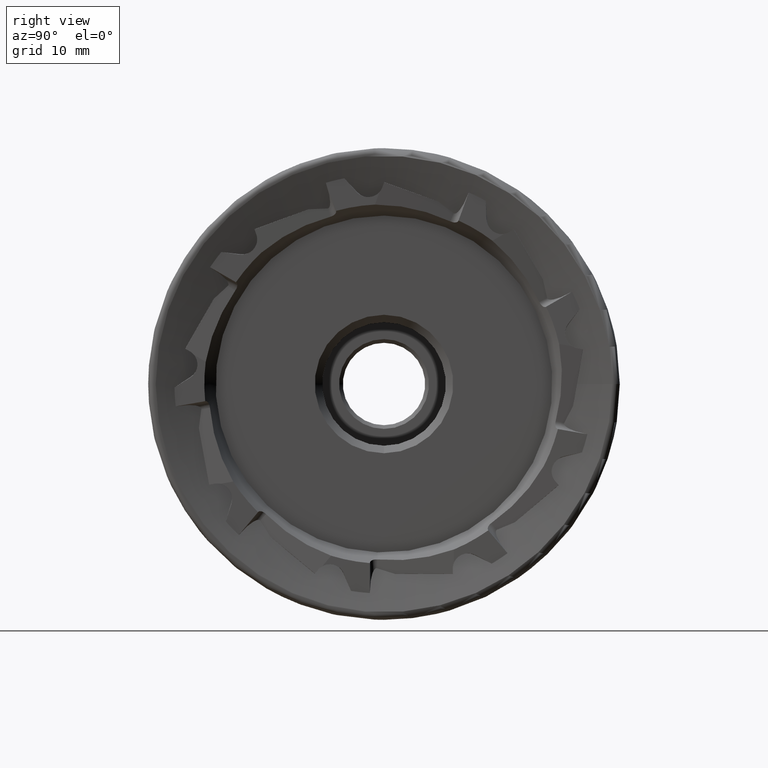
[diagram: clean part render]
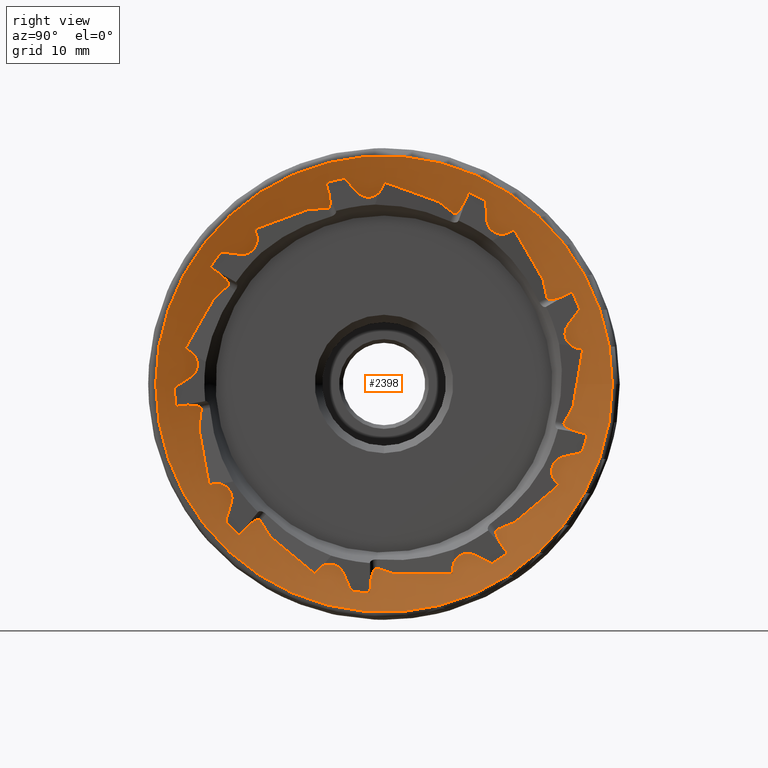
[diagram: same view with one face highlighted and labeled with its STEP entity id]
A machine part, right view. The second image highlights one B-rep face of the part: STEP entity #2398.
In plain terms, the highlighted conical surface has half-angle 75 deg.
Its self-contained STEP definition (entity closure, byte-faithful):
#5 =( BOUNDED_CURVE ( )  B_SPLINE_CURVE ( 3, ( #8221, #5472, #1453, #6158 ),
 .UNSPECIFIED., .F., .F. ) 
 B_SPLINE_CURVE_WITH_KNOTS ( ( 4, 4 ),
 ( 1.847234156644322400, 1.938209428403819800 ),
 .UNSPECIFIED. ) 
 CURVE ( )  GEOMETRIC_REPRESENTATION_ITEM ( )  RATIONAL_B_SPLINE_CURVE ( ( 1.000000000000000000, 0.9993104105768867400, 0.9993104105768867400, 1.000000000000000000 ) ) 
 REPRESENTATION_ITEM ( '' )  );
#8 = CARTESIAN_POINT ( 'NONE',  ( -0.5127967680402357700, 9.089000014150515800, -24.43358532538262300 ) ) ;
#12 = CARTESIAN_POINT ( 'NONE',  ( 0.0000000000000000000, -4.403557819529018100, -27.63442324714401700 ) ) ;
#19 = EDGE_CURVE ( 'NONE', #4540, #5109, #3171, .T. ) ;
#34 = CARTESIAN_POINT ( 'NONE',  ( -0.8928137302355247900, -1.109407230371603400, -24.62607254322664100 ) ) ;
#40 = ORIENTED_EDGE ( 'NONE', *, *, #4634, .T. ) ;
#42 = CARTESIAN_POINT ( 'NONE',  ( -0.8056356440117392600, -24.86514185695260100, 2.361083744776950200 ) ) ;
#43 = CARTESIAN_POINT ( 'NONE',  ( -0.2778770292536752500, 0.08205334540639797100, 26.94589441332791700 ) ) ;
#58 = CARTESIAN_POINT ( 'NONE',  ( -2.187530439334285200E-015, -1.890772195729392800, -27.91912695941772100 ) ) ;
#79 = CARTESIAN_POINT ( 'NONE',  ( -0.7474134838509103300, -7.198400903831959900, 24.14341861729492300 ) ) ;
#80 = CARTESIAN_POINT ( 'NONE',  ( -0.8965752282825731900, 15.12660251828830100, -19.44651956772544900 ) ) ;
#97 = CARTESIAN_POINT ( 'NONE',  ( -0.8753112062443099100, -16.79617784053575500, -18.13258493067430500 ) ) ;
#98 = VERTEX_POINT ( 'NONE', #4085 ) ;
#101 = DIRECTION ( 'NONE',  ( -1.244453544344680400E-016, 1.000000000000000000, 0.0000000000000000000 ) ) ;
#105 = DIRECTION ( 'NONE',  ( 0.0000000000000000000, 0.0000000000000000000, -1.000000000000000000 ) ) ;
#114 = ORIENTED_EDGE ( 'NONE', *, *, #7096, .T. ) ;
#127 = CARTESIAN_POINT ( 'NONE',  ( -0.08119996603715999600, -19.19924487184994900, -19.93924969506226600 ) ) ;
#139 = CARTESIAN_POINT ( 'NONE',  ( -0.6680101217463646500, 15.95262015981411700, 19.88146683388884000 ) ) ;
#141 = CARTESIAN_POINT ( 'NONE',  ( -0.8056388993625436300, 22.55796756769521100, -10.72322115635037300 ) ) ;
#155 = ORIENTED_EDGE ( 'NONE', *, *, #1425, .T. ) ;
#170 = CARTESIAN_POINT ( 'NONE',  ( -0.4683095021175558400, 9.098456074433137500, -24.60710481999992200 ) ) ;
#174 = CARTESIAN_POINT ( 'NONE',  ( -0.6681879469124778500, -0.5597716067114197900, 25.48355701253543500 ) ) ;
#176 =( BOUNDED_CURVE ( )  B_SPLINE_CURVE ( 3, ( #5509, #8251, #3455, #6182 ),
 .UNSPECIFIED., .F., .F. ) 
 B_SPLINE_CURVE_WITH_KNOTS ( ( 4, 4 ),
 ( 1.847234156644324900, 1.938209428403822500 ),
 .UNSPECIFIED. ) 
 CURVE ( )  GEOMETRIC_REPRESENTATION_ITEM ( )  RATIONAL_B_SPLINE_CURVE ( ( 1.000000000000000000, 0.9993104105768867400, 0.9993104105768867400, 1.000000000000000000 ) ) 
 REPRESENTATION_ITEM ( '' )  );
#177 = CARTESIAN_POINT ( 'NONE',  ( -0.8928471047519061000, 24.05923187692634700, -5.368561719797541300 ) ) ;
#187 = EDGE_CURVE ( 'NONE', #7972, #2348, #7443, .T. ) ;
#200 = ORIENTED_EDGE ( 'NONE', *, *, #579, .T. ) ;
#208 = CARTESIAN_POINT ( 'NONE',  ( -0.1623479231942336300, 26.57115725034729100, -6.594221600044170000 ) ) ;
#210 = CIRCLE ( 'NONE', #4695, 30.49296312380651500 ) ;
#223 = CARTESIAN_POINT ( 'NONE',  ( -0.7880973622843526800, -21.01185529947777300, -13.62432449929361900 ) ) ;
#224 = CARTESIAN_POINT ( 'NONE',  ( -0.8585911328953139700, 9.652563438500971300, 22.82139813563756900 ) ) ;
#234 = CARTESIAN_POINT ( 'NONE',  ( -0.5047836204256686000, 26.12566036095561000, 2.090483134719646000 ) ) ;
#250 = CARTESIAN_POINT ( 'NONE',  ( -2.187530439334285200E-015, 11.32564848410151900, 25.58871540517026600 ) ) ;
#253 = CARTESIAN_POINT ( 'NONE',  ( 0.6725166004749030300, -6.527836219514114000E-016, 0.0000000000000000000 ) ) ;
#258 = VERTEX_POINT ( 'NONE', #1602 ) ;
#277 = ORIENTED_EDGE ( 'NONE', *, *, #7861, .T. ) ;
#288 = B_SPLINE_CURVE_WITH_KNOTS ( 'NONE', 3,
 ( #4824, #1494, #6185, #2177, #6892, #2821, #7593, #3497, #8294, #4171, #223, #4859, #860, #5546, #1525, #6220, #2201, #6930 ),
 .UNSPECIFIED., .F., .F.,
 ( 4, 2, 2, 2, 2, 2, 2, 2, 4 ),
 ( 0.0001279109614787507700, 0.0006577592800593307100, 0.001187607598639910700, 0.001717455917220490600, 0.002247304235801070800, 0.002777152554381650600, 0.003307000872962230800, 0.003836849191542810900, 0.004366697510123390700 ),
 .UNSPECIFIED. ) ;
#292 = CARTESIAN_POINT ( 'NONE',  ( -0.7571746982931073500, -24.66024651362132400, -5.039796015296076300 ) ) ;
#293 = EDGE_CURVE ( 'NONE', #1489, #2132, #1836, .T. ) ;
#294 = CARTESIAN_POINT ( 'NONE',  ( -0.7877033546260435700, 24.14787691650474600, 6.639081300661369600 ) ) ;
#334 = CARTESIAN_POINT ( 'NONE',  ( -0.5270440593676136700, 15.36711965394214000, -20.99261260389846500 ) ) ;
#341 = CARTESIAN_POINT ( 'NONE',  ( -0.3414285424795176500, -23.13570524136708400, -13.34564890351261100 ) ) ;
#343 = VERTEX_POINT ( 'NONE', #7710 ) ;
#361 = CARTESIAN_POINT ( 'NONE',  ( -0.2778770292536740800, -9.293143592473789700, -25.29279424372428800 ) ) ;
#378 = DIRECTION ( 'NONE',  ( 0.0000000000000000000, 0.0000000000000000000, -1.000000000000000000 ) ) ;
#380 = CARTESIAN_POINT ( 'NONE',  ( -0.6886372481294285000, -21.17907735562558700, 14.04531286586344800 ) ) ;
#405 = EDGE_CURVE ( 'NONE', #6875, #5109, #2040, .T. ) ;
#412 = CARTESIAN_POINT ( 'NONE',  ( -0.2778770292536778500, 17.38334357009685100, 20.58900980643997200 ) ) ;
#431 = CARTESIAN_POINT ( 'NONE',  ( -0.9008886294700417800, -24.39924387710380700, -3.296475749814750300 ) ) ;
#434 = ORIENTED_EDGE ( 'NONE', *, *, #2814, .T. ) ;
#435 = CARTESIAN_POINT ( 'NONE',  ( 0.0000000000000000000, -6.527836219514114000E-016, -1.289212185099021800E-014 ) ) ;
#438 = CARTESIAN_POINT ( 'NONE',  ( -0.2778770292536740800, -26.52227731619238700, 4.759912231196635100 ) ) ;
#447 = CARTESIAN_POINT ( 'NONE',  ( -0.7275634946992517400, -16.86322590812232700, 18.81778723111048300 ) ) ;
#449 = ORIENTED_EDGE ( 'NONE', *, *, #6621, .T. ) ;
#451 = EDGE_CURVE ( 'NONE', #2470, #6191, #4507, .T. ) ;
#460 = CARTESIAN_POINT ( 'NONE',  ( -0.1624238506891705900, -27.22379661736889700, -2.891286636948518000 ) ) ;
#476 = EDGE_CURVE ( 'NONE', #8018, #3719, #7005, .T. ) ;
#478 = CARTESIAN_POINT ( 'NONE',  ( -0.3839538815161073800, -26.55045655022549400, 0.4789651760880792000 ) ) ;
#484 = CARTESIAN_POINT ( 'NONE',  ( -0.8585911328953149700, 22.06360454122842200, 11.27765704602922100 ) ) ;
#510 = ORIENTED_EDGE ( 'NONE', *, *, #451, .T. ) ;
#516 = ORIENTED_EDGE ( 'NONE', *, *, #2662, .T. ) ;
#520 = CARTESIAN_POINT ( 'NONE',  ( -2.187530439334285200E-015, 25.12405929620339200, 12.32210672543804900 ) ) ;
#547 = CARTESIAN_POINT ( 'NONE',  ( -0.4683095021175533400, -0.1336265163235768600, 26.23497006887921400 ) ) ;
#559 = CARTESIAN_POINT ( 'NONE',  ( -0.6859121996996948600, -10.08555253772735900, 23.33711053078751300 ) ) ;
#571 = EDGE_CURVE ( 'NONE', #98, #6040, #8647, .T. ) ;
#574 = CARTESIAN_POINT ( 'NONE',  ( -0.7043528140382254700, -5.784249705359688000, -24.68612036040941100 ) ) ;
#579 = EDGE_CURVE ( 'NONE', #1025, #8220, #4744, .T. ) ;
#581 = EDGE_CURVE ( 'NONE', #721, #5906, #7961, .T. ) ;
#597 = CARTESIAN_POINT ( 'NONE',  ( -0.5123954309891662900, -8.743968815786152100, -24.56076284795181400 ) ) ;
#616 = ORIENTED_EDGE ( 'NONE', *, *, #405, .T. ) ;
#642 = B_SPLINE_CURVE_WITH_KNOTS ( 'NONE', 3,
 ( #8173, #4746, #759, #5433, #1416, #6112, #2100, #6808, #2745, #7504, #3411, #8208, #4093, #139, #4773, #785, #5458, #1441 ),
 .UNSPECIFIED., .F., .F.,
 ( 4, 2, 2, 2, 2, 2, 2, 2, 4 ),
 ( 0.0001068294875517078600, 0.0006366760201200014500, 0.001166522552688295000, 0.001696369085256588800, 0.002226215617824882100, 0.002756062150393175400, 0.003285908682961469600, 0.003815755215529768200, 0.004345601748098066300 ),
 .UNSPECIFIED. ) ;
#651 = CARTESIAN_POINT ( 'NONE',  ( -0.7721139339287413900, 10.91044055746093900, -22.60689485922532100 ) ) ;
#681 = CARTESIAN_POINT ( 'NONE',  ( -0.6859121996996914200, -15.16775430172352800, -20.40289997426836500 ) ) ;
#697 = CARTESIAN_POINT ( 'NONE',  ( -0.8585312647893323900, -1.265259512413073200, -24.74668437099040500 ) ) ;
#710 = CARTESIAN_POINT ( 'NONE',  ( -0.7994161693937814600, -24.83238010070535000, 2.892087001094828300 ) ) ;
#714 = ORIENTED_EDGE ( 'NONE', *, *, #2015, .T. ) ;
#721 = VERTEX_POINT ( 'NONE', #2297 ) ;
#727 = CARTESIAN_POINT ( 'NONE',  ( -0.4049080910357163400, -26.08050596982418100, 4.536033824605832300 ) ) ;
#739 = CARTESIAN_POINT ( 'NONE',  ( -0.6481963523568742300, -7.205880091658264600, 24.52737275627586700 ) ) ;
#750 = CARTESIAN_POINT ( 'NONE',  ( -0.8236200307103893600, -17.02707706723241200, -18.18108540449520700 ) ) ;
#759 = CARTESIAN_POINT ( 'NONE',  ( -0.6432568567884733300, 13.77949544157779700, 21.55462745275967500 ) ) ;
#764 = CARTESIAN_POINT ( 'NONE',  ( -0.1933855773808898200, 25.62379320948791800, 9.317329036942638300 ) ) ;
#772 = CARTESIAN_POINT ( 'NONE',  ( -0.4683095021175520700, -16.96587755105582200, 20.01125956763923600 ) ) ;
#785 = CARTESIAN_POINT ( 'NONE',  ( -0.5550294105848621000, 16.45838020124895400, 20.01362445739980000 ) ) ;
#786 = CARTESIAN_POINT ( 'NONE',  ( -0.7993954065476420700, 22.34550894551448500, -11.21130771414917100 ) ) ;
#788 = CARTESIAN_POINT ( 'NONE',  ( -0.6431514708699069800, -3.299842935183209000, 25.36942526442600600 ) ) ;
#819 = CARTESIAN_POINT ( 'NONE',  ( -0.5553177798859602100, -0.2572283985804887900, 25.90948689918430900 ) ) ;
#822 = CARTESIAN_POINT ( 'NONE',  ( -0.8585911328953155200, 24.15083986946435200, -5.543025112613054100 ) ) ;
#842 = CARTESIAN_POINT ( 'NONE',  ( -2.187530439334285200E-015, 27.16664354079505400, -6.710152636088696300 ) ) ;
#860 = CARTESIAN_POINT ( 'NONE',  ( -0.7275720483868805000, -21.46012090184050800, -13.33938179556452900 ) ) ;
#863 = CARTESIAN_POINT ( 'NONE',  ( -0.8048006211371766500, 9.841505835765092400, 22.95911663060993700 ) ) ;
#895 = VERTEX_POINT ( 'NONE', #1275 ) ;
#899 = ORIENTED_EDGE ( 'NONE', *, *, #2046, .T. ) ;
#902 = DIRECTION ( 'NONE',  ( -1.244453544344680400E-016, 1.000000000000000000, 0.0000000000000000000 ) ) ;
#909 = CARTESIAN_POINT ( 'NONE',  ( -0.6859121996997000800, 25.25330683945099600, -2.934210556519402300 ) ) ;
#917 = CARTESIAN_POINT ( 'NONE',  ( 0.0000000000000000000, -6.527836219514114000E-016, -1.289212185099021800E-014 ) ) ;
#937 = CARTESIAN_POINT ( 'NONE',  ( -0.8274441649016748300, -24.55036274474409600, -4.204846460594940700 ) ) ;
#941 = CARTESIAN_POINT ( 'NONE',  ( -0.8082000665303019600, 24.20741153246055800, 6.113493267465876200 ) ) ;
#943 = CARTESIAN_POINT ( 'NONE',  ( -0.8973102009553620700, 14.99910392749169400, -19.54161093397628300 ) ) ;
#967 = CARTESIAN_POINT ( 'NONE',  ( -0.3245463986098856600, 15.76290651229554000, -21.63937380153095100 ) ) ;
#968 = CARTESIAN_POINT ( 'NONE',  ( -0.6859121996996974100, 17.45908118479779200, -18.48024843177417900 ) ) ;
#974 = CARTESIAN_POINT ( 'NONE',  ( -0.8274441649016751600, 15.91668522626018700, -19.15881457877413400 ) ) ;
#981 = ORIENTED_EDGE ( 'NONE', *, *, #1580, .F. ) ;
#1013 = EDGE_CURVE ( 'NONE', #2132, #2509, #288, .T. ) ;
#1025 = VERTEX_POINT ( 'NONE', #5515 ) ;
#1029 = CARTESIAN_POINT ( 'NONE',  ( -0.5675019967491298200, -21.50618903937552100, 14.36971876795161400 ) ) ;
#1037 = EDGE_LOOP ( 'NONE', ( #6146 ) ) ;
#1045 = CARTESIAN_POINT ( 'NONE',  ( -0.2778770292536797400, 26.55077414399498500, 4.598298689763020700 ) ) ;
#1055 = EDGE_CURVE ( 'NONE', #7473, #3268, #8113, .T. ) ;
#1060 = CARTESIAN_POINT ( 'NONE',  ( -0.5709356899046089700, -19.18024473526046600, 17.33377333736456200 ) ) ;
#1064 = EDGE_CURVE ( 'NONE', #8211, #1672, #5447, .T. ) ;
#1066 = EDGE_CURVE ( 'NONE', #1489, #6916, #4056, .T. ) ;
#1072 = CARTESIAN_POINT ( 'NONE',  ( -0.8929065111786149700, -24.44416385444866100, -3.184339671876757800 ) ) ;
#1077 = DIRECTION ( 'NONE',  ( 0.0000000000000000000, 0.0000000000000000000, -1.000000000000000000 ) ) ;
#1083 = CARTESIAN_POINT ( 'NONE',  ( -0.6859121996996960800, 21.23122956468198900, 13.98477704824878000 ) ) ;
#1089 = CARTESIAN_POINT ( 'NONE',  ( -0.5709356899046124100, 23.95203408381205900, -9.728388842121965800 ) ) ;
#1090 = CARTESIAN_POINT ( 'NONE',  ( -0.6323930484233467600, -16.80724513137700500, 19.34064404682268500 ) ) ;
#1102 = CARTESIAN_POINT ( 'NONE',  ( -2.187530439334285200E-015, -27.82330183313839800, -2.986058401020614800 ) ) ;
#1131 = B_SPLINE_CURVE_WITH_KNOTS ( 'NONE', 3,
 ( #6949, #2218, #2872, #7644 ),
 .UNSPECIFIED., .F., .F.,
 ( 4, 4 ),
 ( 8.839672081940733500E-005, 0.0008553358774930198000 ),
 .UNSPECIFIED. ) ;
#1132 = DIRECTION ( 'NONE',  ( 1.000000000000000000, -0.0000000000000000000, -0.0000000000000000000 ) ) ;
#1134 = CARTESIAN_POINT ( 'NONE',  ( -0.8048006211371766500, 22.29686655691510600, 11.26170570191166000 ) ) ;
#1156 = CONICAL_SURFACE ( 'NONE', #7310, 30.49296312380651500, 1.308998804440522100 ) ;
#1167 = CARTESIAN_POINT ( 'NONE',  ( 2.020904145118513100E-014, 16.49765334903634100, -22.60265700415028400 ) ) ;
#1183 = CARTESIAN_POINT ( 'NONE',  ( -0.2778770292536740800, -26.52227731619238700, 4.759912231196635100 ) ) ;
#1198 = CARTESIAN_POINT ( 'NONE',  ( -0.6859121996996967500, 1.495557407703900900, -25.37917268071822700 ) ) ;
#1204 = CARTESIAN_POINT ( 'NONE',  ( -0.5709356899046124100, 12.09503480137177400, -22.84844894887228200 ) ) ;
#1209 = B_SPLINE_CURVE_WITH_KNOTS ( 'NONE', 3,
 ( #3865, #3166, #4525, #559 ),
 .UNSPECIFIED., .F., .F.,
 ( 4, 4 ),
 ( 4.973832456883138300E-005, 0.007702190258420645400 ),
 .UNSPECIFIED. ) ;
#1214 = CARTESIAN_POINT ( 'NONE',  ( -0.7721794362527419900, -6.174095531847337200, -24.33059166465279000 ) ) ;
#1239 = CARTESIAN_POINT ( 'NONE',  ( -0.8274441649016731600, -16.10384575166162000, -19.00176825093881000 ) ) ;
#1246 =( BOUNDED_CURVE ( )  B_SPLINE_CURVE ( 3, ( #6928, #4856, #7615, #3531 ),
 .UNSPECIFIED., .F., .T. ) 
 B_SPLINE_CURVE_WITH_KNOTS ( ( 4, 4 ),
 ( 1.847234156644324400, 1.938209428403820000 ),
 .UNSPECIFIED. ) 
 CURVE ( )  GEOMETRIC_REPRESENTATION_ITEM ( )  RATIONAL_B_SPLINE_CURVE ( ( 1.000000000000000000, 0.9993104105768867400, 0.9993104105768867400, 1.000000000000000000 ) ) 
 REPRESENTATION_ITEM ( '' )  );
#1256 = B_SPLINE_CURVE_WITH_KNOTS ( 'NONE', 3,
 ( #1183, #5181, #3172, #7952 ),
 .UNSPECIFIED., .F., .F.,
 ( 4, 4 ),
 ( 2.307316300272269900E-005, 0.007676162494666673300 ),
 .UNSPECIFIED. ) ;
#1275 = CARTESIAN_POINT ( 'NONE',  ( -0.4683095021175530100, -8.847320371771955300, -24.69851074053012500 ) ) ;
#1289 = CARTESIAN_POINT ( 'NONE',  ( -0.8056065726027142900, 10.38848226011490500, -22.71419600538463300 ) ) ;
#1291 = ORIENTED_EDGE ( 'NONE', *, *, #2933, .T. ) ;
#1326 = EDGE_CURVE ( 'NONE', #5475, #8262, #6325, .T. ) ;
#1334 = EDGE_CURVE ( 'NONE', #7004, #6312, #4541, .T. ) ;
#1335 = ORIENTED_EDGE ( 'NONE', *, *, #4001, .T. ) ;
#1344 = CARTESIAN_POINT ( 'NONE',  ( -0.5709356899046119600, 13.73981982610926900, 21.89883187208103600 ) ) ;
#1346 = CARTESIAN_POINT ( 'NONE',  ( -0.7669778008595349300, -1.466371877732149700, -25.07786264815075900 ) ) ;
#1356 = CARTESIAN_POINT ( 'NONE',  ( 0.6725166004749030300, -6.527836219514114000E-016, 0.0000000000000000000 ) ) ;
#1357 = CARTESIAN_POINT ( 'NONE',  ( -0.7523809904790654800, -24.94365227782174800, 3.410007663653168200 ) ) ;
#1361 = CARTESIAN_POINT ( 'NONE',  ( -0.8998712355368063700, -7.523166272240106700, 23.44735989976735300 ) ) ;
#1369 = CARTESIAN_POINT ( 'NONE',  ( -0.5048492421983421500, 2.478642210606935700, 26.09151444611612900 ) ) ;
#1377 = EDGE_CURVE ( 'NONE', #3268, #4077, #5031, .T. ) ;
#1378 = DIRECTION ( 'NONE',  ( 1.000000000000000000, 1.242464070160893000E-016, -0.0000000000000000000 ) ) ;
#1381 = CARTESIAN_POINT ( 'NONE',  ( -0.1933878559326930900, 25.61801825831706800, -9.333170985845333300 ) ) ;
#1388 = CARTESIAN_POINT ( 'NONE',  ( -0.5269555252942317300, -7.260525479631505500, 24.98279632490365600 ) ) ;
#1403 = CARTESIAN_POINT ( 'NONE',  ( -0.7668291729136880200, -17.24130980468579500, -18.27056111068207800 ) ) ;
#1416 = CARTESIAN_POINT ( 'NONE',  ( -0.7307619722986481400, 13.94838116667353700, 21.05525258757231200 ) ) ;
#1425 = EDGE_CURVE ( 'NONE', #4303, #4647, #176, .T. ) ;
#1437 = CARTESIAN_POINT ( 'NONE',  ( -0.3839548242420223200, 24.78544815863721600, -9.530871992100214700 ) ) ;
#1440 = VERTEX_POINT ( 'NONE', #3427 ) ;
#1441 = CARTESIAN_POINT ( 'NONE',  ( -0.4683095021175560600, 16.76114985048978300, 20.18304650567597800 ) ) ;
#1443 = CARTESIAN_POINT ( 'NONE',  ( -0.7523275020061865900, 22.27306883383263200, -11.73603064613786500 ) ) ;
#1444 = CARTESIAN_POINT ( 'NONE',  ( -0.7306570839482513500, -2.849673370782971100, 25.09542071082054800 ) ) ;
#1446 = CARTESIAN_POINT ( 'NONE',  ( -0.8965752282825731900, 24.08763163206506200, -5.173705577451591400 ) ) ;
#1453 = CARTESIAN_POINT ( 'NONE',  ( -0.8274441649016744900, 21.63165251973826700, 12.34798177521322900 ) ) ;
#1469 = CARTESIAN_POINT ( 'NONE',  ( -0.4683095021175533400, -0.1336265163235768600, 26.23497006887921400 ) ) ;
#1472 = CARTESIAN_POINT ( 'NONE',  ( -0.8048006211371774300, 24.31927561401524700, -5.705182484628497100 ) ) ;
#1489 = VERTEX_POINT ( 'NONE', #8350 ) ;
#1490 = EDGE_CURVE ( 'NONE', #8220, #98, #3995, .T. ) ;
#1494 = CARTESIAN_POINT ( 'NONE',  ( -0.6088384375156290500, -20.35125290222203600, -15.71254936227846100 ) ) ;
#1495 = CARTESIAN_POINT ( 'NONE',  ( -0.8998676027636657300, 9.308558853747793900, 22.79754621886024100 ) ) ;
#1525 = CARTESIAN_POINT ( 'NONE',  ( -0.6323951080584634400, -21.96535307776767700, -13.19344042698965000 ) ) ;
#1528 = CARTESIAN_POINT ( 'NONE',  ( -0.7474586742448733300, 10.00467487630087000, 23.12184292864281700 ) ) ;
#1531 = ORIENTED_EDGE ( 'NONE', *, *, #187, .T. ) ;
#1540 = EDGE_CURVE ( 'NONE', #6861, #6875, #6385, .T. ) ;
#1558 = CARTESIAN_POINT ( 'NONE',  ( -0.4683095021175510700, -25.85960592492305200, 4.424058314323783500 ) ) ;
#1563 = B_SPLINE_CURVE_WITH_KNOTS ( 'NONE', 3,
 ( #6186, #1495, #7595, #3501, #8295, #4173, #224, #4861, #863, #5548, #1528, #6223, #2203, #6932, #2853, #7622, #3535, #8327, #4210, #250 ),
 .UNSPECIFIED., .F., .F.,
 ( 4, 2, 2, 2, 2, 2, 2, 2, 2, 4 ),
 ( 0.004252852474823261100, 0.004370860246753175900, 0.004488868018683090700, 0.004724883562542922900, 0.004960899106402754200, 0.005196914650262585500, 0.005668945737982246400, 0.006140976825701905500, 0.007085039001141225600, 0.008029101176580545600 ),
 .UNSPECIFIED. ) ;
#1571 = DIRECTION ( 'NONE',  ( 0.0000000000000000000, 0.0000000000000000000, -1.000000000000000000 ) ) ;
#1580 = EDGE_CURVE ( 'NONE', #3566, #2843, #3229, .T. ) ;
#1585 = CARTESIAN_POINT ( 'NONE',  ( -0.6859121996996948600, -10.08555253772735900, 23.33711053078751300 ) ) ;
#1595 = CARTESIAN_POINT ( 'NONE',  ( -0.7881658303008078900, 24.40404862145221500, 5.616933900912814100 ) ) ;
#1599 = CARTESIAN_POINT ( 'NONE',  ( -0.8753112062443090300, 14.94048454810147300, -19.68969648793406800 ) ) ;
#1602 = CARTESIAN_POINT ( 'NONE',  ( -0.8965752282825731900, -16.52437627780666300, -18.27364812164429600 ) ) ;
#1609 = B_SPLINE_CURVE_WITH_KNOTS ( 'NONE', 3,
 ( #5396, #1381, #1437, #6137 ),
 .UNSPECIFIED., .F., .F.,
 ( 4, 4 ),
 ( 9.066412411099495600E-007, 0.002630921034726749300 ),
 .UNSPECIFIED. ) ;
#1611 = VERTEX_POINT ( 'NONE', #3488 ) ;
#1615 = CARTESIAN_POINT ( 'NONE',  ( 0.0000000000000000000, -21.73033364119337900, 17.63080456231785200 ) ) ;
#1623 = B_SPLINE_CURVE_WITH_KNOTS ( 'NONE', 3,
 ( #7178, #4447, #478, #5126 ),
 .UNSPECIFIED., .F., .F.,
 ( 4, 4 ),
 ( 9.066505554867575800E-007, 0.002630935814904357600 ),
 .UNSPECIFIED. ) ;
#1635 = CARTESIAN_POINT ( 'NONE',  ( -0.08119996603713944300, 16.30241380436554600, -22.36997957537141000 ) ) ;
#1641 = CARTESIAN_POINT ( 'NONE',  ( -0.8965752282825731900, 15.12660251828830100, -19.44651956772544900 ) ) ;
#1660 = CARTESIAN_POINT ( 'NONE',  ( -0.9009007615814028600, -20.80971297322975000, 13.15840004409146000 ) ) ;
#1669 = EDGE_CURVE ( 'NONE', #1611, #5710, #1131, .T. ) ;
#1672 = VERTEX_POINT ( 'NONE', #6241 ) ;
#1675 = EDGE_CURVE ( 'NONE', #3081, #2948, #5439, .T. ) ;
#1690 = CARTESIAN_POINT ( 'NONE',  ( -0.4056002438480987300, -21.97011259505356800, 14.76284060562805900 ) ) ;
#1699 = CARTESIAN_POINT ( 'NONE',  ( -0.3839512530936596300, -20.64670603641160800, -16.69940742455430200 ) ) ;
#1733 = CARTESIAN_POINT ( 'NONE',  ( -0.7043874956908839900, -18.48648991890320700, 17.35238483305508700 ) ) ;
#1746 = CARTESIAN_POINT ( 'NONE',  ( -0.8965752282825731900, -7.563255354258302500, 23.44735369909569300 ) ) ;
#1747 = CARTESIAN_POINT ( 'NONE',  ( -0.8587036250328375900, -24.58973230538729700, -3.051630194225913900 ) ) ;
#1760 = CARTESIAN_POINT ( 'NONE',  ( 0.0000000000000000000, 26.44992447319597100, -9.135325119253211700 ) ) ;
#1768 = CARTESIAN_POINT ( 'NONE',  ( -0.8965752282825731900, -20.86545817373601300, 13.10014817642481500 ) ) ;
#1769 = CIRCLE ( 'NONE', #5607, 27.98307827370372200 ) ;
#1771 = CARTESIAN_POINT ( 'NONE',  ( -0.5123583104918175700, -16.89831708882856300, 19.85301390400178100 ) ) ;
#1775 = EDGE_CURVE ( 'NONE', #6350, #4946, #5687, .T. ) ;
#1779 = EDGE_CURVE ( 'NONE', #895, #7972, #3903, .T. ) ;
#1787 = CARTESIAN_POINT ( 'NONE',  ( -0.8965752282825731900, 21.77779020099236400, 11.51994275184455300 ) ) ;
#1788 = CARTESIAN_POINT ( 'NONE',  ( -0.6859121996997000800, 25.25330683945099600, -2.934210556519402300 ) ) ;
#1790 = CARTESIAN_POINT ( 'NONE',  ( -0.5709356899046091900, -5.421365685968729600, -25.27746586022060900 ) ) ;
#1802 = CARTESIAN_POINT ( 'NONE',  ( 0.0000000000000000000, -6.527836219514114000E-016, -1.289212185099021800E-014 ) ) ;
#1816 = CARTESIAN_POINT ( 'NONE',  ( -0.7474586742448731100, 22.52645974185227800, 11.28147824072822800 ) ) ;
#1818 = ORIENTED_EDGE ( 'NONE', *, *, #4880, .T. ) ;
#1836 = B_SPLINE_CURVE_WITH_KNOTS ( 'NONE', 3,
 ( #6392, #7072, #1699, #3706 ),
 .UNSPECIFIED., .F., .F.,
 ( 4, 4 ),
 ( 9.066685570971622100E-007, 0.002630953902403148000 ),
 .UNSPECIFIED. ) ;
#1879 = VERTEX_POINT ( 'NONE', #5152 ) ;
#1885 = CARTESIAN_POINT ( 'NONE',  ( -0.8965752282825731900, -0.9123320272564999800, -24.62009092826618000 ) ) ;
#1896 = CARTESIAN_POINT ( 'NONE',  ( -0.8998676027636656200, -16.54440409026615900, -18.23897132057450300 ) ) ;
#1904 = CARTESIAN_POINT ( 'NONE',  ( -0.8056443977709559800, -6.643269441606030100, -24.07727875411612600 ) ) ;
#1935 = EDGE_CURVE ( 'NONE', #2169, #1611, #4649, .T. ) ;
#1944 = VERTEX_POINT ( 'NONE', #8239 ) ;
#1987 = CARTESIAN_POINT ( 'NONE',  ( -0.7993974390838101100, 9.910947773038769200, -22.95186515375291600 ) ) ;
#2006 = CARTESIAN_POINT ( 'NONE',  ( 0.0000000000000000000, -5.313538611494722700, 27.47396908159401700 ) ) ;
#2012 = CARTESIAN_POINT ( 'NONE',  ( -0.3839543830589928800, -5.082127924948746800, -26.06392191715885400 ) ) ;
#2015 = EDGE_CURVE ( 'NONE', #3719, #5476, #3741, .T. ) ;
#2017 = B_SPLINE_CURVE_WITH_KNOTS ( 'NONE', 3,
 ( #1204, #5216, #3947, #8759, #4616, #651, #5301, #1289, #5988, #1987, #6670, #2620, #7379, #3295, #8068, #3969, #8, #4648 ),
 .UNSPECIFIED., .F., .F.,
 ( 4, 2, 2, 2, 2, 2, 2, 2, 4 ),
 ( 0.0001402927638183928700, 0.0006700122389077538200, 0.001199731713997114800, 0.001729451189086475800, 0.002259170664175836700, 0.002788890139265197500, 0.003318609614354558700, 0.003848329089443919900, 0.004378048564533281100 ),
 .UNSPECIFIED. ) ;
#2024 = CARTESIAN_POINT ( 'NONE',  ( 0.0000000000000000000, -21.73033364119337900, 17.63080456231785200 ) ) ;
#2032 = CARTESIAN_POINT ( 'NONE',  ( -0.6480846535518735000, -1.617655738337770500, -25.51315787235518700 ) ) ;
#2040 = B_SPLINE_CURVE_WITH_KNOTS ( 'NONE', 3,
 ( #6060, #1361, #5373, #2057, #6745, #2697, #7452, #3357, #8144, #4043, #79, #4722, #739, #5406, #1388, #6083, #2078, #6778, #2717, #7482 ),
 .UNSPECIFIED., .F., .F.,
 ( 4, 2, 2, 2, 2, 2, 2, 2, 2, 4 ),
 ( 0.003557823398622484700, 0.003677434514788926200, 0.003797045630955368000, 0.004036267863288251300, 0.004275490095621134100, 0.004514712327954017800, 0.004993156792619794800, 0.005471601257285570900, 0.006428490186617124800, 0.007385379115948678700 ),
 .UNSPECIFIED. ) ;
#2046 = EDGE_CURVE ( 'NONE', #5906, #7850, #6206, .T. ) ;
#2049 = CARTESIAN_POINT ( 'NONE',  ( -0.6680939984129528100, -25.19390409870389600, 3.874280342277247200 ) ) ;
#2057 = CARTESIAN_POINT ( 'NONE',  ( -0.8973094634167447800, -7.410936152507963100, 23.49310184021092600 ) ) ;
#2069 = CARTESIAN_POINT ( 'NONE',  ( 0.0000000000000000000, 14.38974386649422700, -23.99974877220428800 ) ) ;
#2078 = CARTESIAN_POINT ( 'NONE',  ( -0.3245092137057671900, -7.411220312504954500, 25.72572573042827300 ) ) ;
#2089 = CARTESIAN_POINT ( 'NONE',  ( -0.8965752282825731900, -20.86545817373601300, 13.10014817642481500 ) ) ;
#2091 = CARTESIAN_POINT ( 'NONE',  ( -0.6886372481294305000, -17.50964119125571400, -18.41837659754633100 ) ) ;
#2100 = CARTESIAN_POINT ( 'NONE',  ( -0.7877204918221298900, 14.23086462602710400, 20.60768768594589400 ) ) ;
#2107 = B_SPLINE_CURVE_WITH_KNOTS ( 'NONE', 3,
 ( #3996, #8099, #5349, #1344 ),
 .UNSPECIFIED., .F., .F.,
 ( 4, 4 ),
 ( 9.066366686029733800E-007, 0.002630913151129939200 ),
 .UNSPECIFIED. ) ;
#2111 = CARTESIAN_POINT ( 'NONE',  ( -0.2778770292536747500, -17.25763055152105700, 20.69449555396110400 ) ) ;
#2125 = CARTESIAN_POINT ( 'NONE',  ( -0.6680049034955212200, 22.34957472241632100, -12.25790816328113100 ) ) ;
#2126 = CARTESIAN_POINT ( 'NONE',  ( -0.4049080910357200100, 9.111932460377723000, -24.85439762572244900 ) ) ;
#2128 = CARTESIAN_POINT ( 'NONE',  ( -0.7877050435323224000, -2.344917036827357700, 24.93387979159635400 ) ) ;
#2132 = VERTEX_POINT ( 'NONE', #7138 ) ;
#2162 = CARTESIAN_POINT ( 'NONE',  ( -0.7474586742448736700, 24.50786374047770300, -5.837615495687800600 ) ) ;
#2169 = VERTEX_POINT ( 'NONE', #1089 ) ;
#2177 = CARTESIAN_POINT ( 'NONE',  ( -0.7044040019528564600, -20.29890265609526500, -15.19233408290857800 ) ) ;
#2178 = CARTESIAN_POINT ( 'NONE',  ( -0.5049123266415234100, -23.83536284046439500, -10.89849450458123300 ) ) ;
#2198 = EDGE_CURVE ( 'NONE', #4647, #7108, #5197, .T. ) ;
#2201 = CARTESIAN_POINT ( 'NONE',  ( -0.5123467721541543600, -22.48580787631874900, -13.19416422654752800 ) ) ;
#2203 = CARTESIAN_POINT ( 'NONE',  ( -0.6483289484434698900, 10.24557380323909200, 23.42049615430664400 ) ) ;
#2218 = CARTESIAN_POINT ( 'NONE',  ( -0.4049080910357248900, 22.95624406738474800, -13.18253590242279000 ) ) ;
#2221 = EDGE_CURVE ( 'NONE', #1672, #5212, #3437, .T. ) ;
#2241 = CARTESIAN_POINT ( 'NONE',  ( -0.6087821661524180900, 24.49808448656726200, 7.804635010193325500 ) ) ;
#2267 = B_SPLINE_CURVE_WITH_KNOTS ( 'NONE', 3,
 ( #1446, #7547, #8243, #4133, #177, #4808, #822, #5497, #1472, #6177, #2162, #6876, #2806, #7581, #3479, #8271, #4158, #208, #4840, #842 ),
 .UNSPECIFIED., .F., .F.,
 ( 4, 2, 2, 2, 2, 2, 2, 2, 2, 4 ),
 ( 0.004252852474823260200, 0.004370860246753173300, 0.004488868018683087200, 0.004724883562542914200, 0.004960899106402741200, 0.005196914650262568100, 0.005668945737982222100, 0.006140976825701875200, 0.007085039001141192600, 0.008029101176580509200 ),
 .UNSPECIFIED. ) ;
#2275 = CARTESIAN_POINT ( 'NONE',  ( -0.7277064705974297700, 24.72761077944639800, 5.195750958867339600 ) ) ;
#2278 = CARTESIAN_POINT ( 'NONE',  ( -0.8236200307103858100, 14.94815296080449200, -19.92550985544445700 ) ) ;
#2287 = CARTESIAN_POINT ( 'NONE',  ( -0.5709356899046089700, -19.18024473526046600, 17.33377333736456200 ) ) ;
#2293 = CARTESIAN_POINT ( 'NONE',  ( -0.5048957802705378300, 21.35619582047983700, -15.19266231297054900 ) ) ;
#2297 = CARTESIAN_POINT ( 'NONE',  ( -0.2778770292536744100, -23.37685576233829500, -13.40188692507661200 ) ) ;
#2325 = CARTESIAN_POINT ( 'NONE',  ( -0.8928471047519054300, -20.77212640766699900, 13.27353976717917100 ) ) ;
#2343 = ORIENTED_EDGE ( 'NONE', *, *, #2198, .T. ) ;
#2348 = VERTEX_POINT ( 'NONE', #681 ) ;
#2359 = CARTESIAN_POINT ( 'NONE',  ( -0.1623479231942335500, -22.71336377712508200, 15.28441238848106200 ) ) ;
#2377 = CARTESIAN_POINT ( 'NONE',  ( -0.8998676027636657300, 21.78475002409906100, 11.48050730247891600 ) ) ;
#2396 = CARTESIAN_POINT ( 'NONE',  ( -0.7721561603010489400, -17.98408188781803900, 17.51211881503675000 ) ) ;
#2398 = ADVANCED_FACE ( 'NONE', ( #3754, #5534 ), #1156, .F. ) ;
#2412 = CARTESIAN_POINT ( 'NONE',  ( -0.8050389790969287900, -24.80299817939290800, -2.956876214341949800 ) ) ;
#2430 = CARTESIAN_POINT ( 'NONE',  ( -0.4683095021175526800, -22.65333728901193700, -13.23320899219512900 ) ) ;
#2453 = EDGE_CURVE ( 'NONE', #6191, #1944, #6301, .T. ) ;
#2454 = DIRECTION ( 'NONE',  ( 0.0000000000000000000, 0.0000000000000000000, -1.000000000000000000 ) ) ;
#2466 = DIRECTION ( 'NONE',  ( 1.000000000000000000, -0.0000000000000000000, -0.0000000000000000000 ) ) ;
#2469 = CARTESIAN_POINT ( 'NONE',  ( -0.6483289484434714400, 22.90296961923624200, 11.35541303924489000 ) ) ;
#2470 = VERTEX_POINT ( 'NONE', #5063 ) ;
#2509 = VERTEX_POINT ( 'NONE', #2430 ) ;
#2516 = EDGE_CURVE ( 'NONE', #8212, #5475, #1623, .T. ) ;
#2549 = CARTESIAN_POINT ( 'NONE',  ( -0.7994001211849348600, -7.160565961023042500, -23.95288204948986200 ) ) ;
#2593 = ORIENTED_EDGE ( 'NONE', *, *, #1675, .F. ) ;
#2620 = CARTESIAN_POINT ( 'NONE',  ( -0.7523988155471259500, 9.518705808865904700, -23.30675711674927400 ) ) ;
#2643 = ORIENTED_EDGE ( 'NONE', *, *, #1334, .F. ) ;
#2662 = EDGE_CURVE ( 'NONE', #258, #6916, #7940, .T. ) ;
#2676 = B_SPLINE_CURVE_WITH_KNOTS ( 'NONE', 3,
 ( #7031, #5647, #3637, #8433 ),
 .UNSPECIFIED., .F., .F.,
 ( 4, 4 ),
 ( 9.066689306932730600E-007, 0.002630953919221856700 ),
 .UNSPECIFIED. ) ;
#2677 = CARTESIAN_POINT ( 'NONE',  ( -0.5268991464122502200, -1.721996875248855000, -25.95960356493698000 ) ) ;
#2692 = CARTESIAN_POINT ( 'NONE',  ( -0.5551448159351631800, -25.56110974538686200, 4.246268940511619400 ) ) ;
#2697 = CARTESIAN_POINT ( 'NONE',  ( -0.8753028803465070500, -7.305167780207429300, 23.61224865547063000 ) ) ;
#2704 = CARTESIAN_POINT ( 'NONE',  ( -0.3414285424795175900, -26.30139619619252000, 4.647984488157995900 ) ) ;
#2717 = CARTESIAN_POINT ( 'NONE',  ( -0.08119581314244504700, -7.668279645488411200, 26.59667323762193200 ) ) ;
#2734 = CARTESIAN_POINT ( 'NONE',  ( -0.5675019967491293800, -17.88592098653180800, -18.68418622608214700 ) ) ;
#2738 = EDGE_CURVE ( 'NONE', #6646, #7473, #6596, .T. ) ;
#2745 = CARTESIAN_POINT ( 'NONE',  ( -0.8081852585920337200, 14.61499486647655400, 20.24297503615450100 ) ) ;
#2748 = CARTESIAN_POINT ( 'NONE',  ( -0.6432744115305973900, 23.61985939471589900, -9.827274965314314800 ) ) ;
#2754 = EDGE_CURVE ( 'NONE', #2509, #721, #3537, .T. ) ;
#2756 = VERTEX_POINT ( 'NONE', #7712 ) ;
#2775 = CARTESIAN_POINT ( 'NONE',  ( -0.5550193686430091600, 22.56756228591197900, -12.73304829377298800 ) ) ;
#2780 = CARTESIAN_POINT ( 'NONE',  ( -0.8081991708404708800, -1.816836473012460000, 24.90126158001037000 ) ) ;
#2783 = AXIS2_PLACEMENT_3D ( 'NONE', #917, #5596, #1571 ) ;
#2806 = CARTESIAN_POINT ( 'NONE',  ( -0.6483289484434718900, 24.84381141223828100, -6.022994038238006300 ) ) ;
#2812 = EDGE_CURVE ( 'NONE', #7850, #5145, #5945, .T. ) ;
#2814 = EDGE_CURVE ( 'NONE', #8085, #1879, #4348, .T. ) ;
#2821 = CARTESIAN_POINT ( 'NONE',  ( -0.7721499799613020800, -20.36895622069662800, -14.66997917756332000 ) ) ;
#2822 = CARTESIAN_POINT ( 'NONE',  ( -0.6859121996996930800, -24.73390520256280600, -5.879883616882960200 ) ) ;
#2824 = CARTESIAN_POINT ( 'NONE',  ( 0.0000000000000000000, -27.97926405442040100, -0.4620093562334205400 ) ) ;
#2830 = EDGE_LOOP ( 'NONE', ( #3486, #155, #2343, #5919, #3949, #4862, #5720, #4473, #6136, #616, #4129, #449, #4743, #714, #40, #277, #8272, #2593, #6463, #5284, #3869, #3070, #6556, #434, #7811, #4201, #200, #4394, #8533, #8528, #1335, #2643, #5044, #3853, #5613, #5722, #4243, #6167, #981, #8201, #1818, #510, #3795, #114, #1291, #4728, #7685, #5269, #8544, #1531, #6613, #516, #7552, #7095, #7890, #6201, #7815, #899, #4528, #4026, #4842, #8276, #7140 ) ) ;
#2843 = VERTEX_POINT ( 'NONE', #1167 ) ;
#2853 = CARTESIAN_POINT ( 'NONE',  ( -0.5270440593676234400, 10.49657597981027000, 23.80462230525827400 ) ) ;
#2872 = CARTESIAN_POINT ( 'NONE',  ( -0.3414285424795213100, 23.12552360111329000, -13.36328402173658400 ) ) ;
#2895 = CARTESIAN_POINT ( 'NONE',  ( -0.6859121996996930800, -24.73390520256280600, -5.879883616882960200 ) ) ;
#2897 = CARTESIAN_POINT ( 'NONE',  ( -0.5709356899046144100, 24.60161042122934600, 7.943692522855908300 ) ) ;
#2923 = CARTESIAN_POINT ( 'NONE',  ( -0.6325866838218180400, 25.15228930830261700, 4.885623629085219300 ) ) ;
#2924 = CARTESIAN_POINT ( 'NONE',  ( -2.187530439334285200E-015, -7.772159124273706300, 26.88207975992924000 ) ) ;
#2928 = CARTESIAN_POINT ( 'NONE',  ( -0.7668291729136824700, 14.99906820550818400, -20.15202520956238500 ) ) ;
#2933 = EDGE_CURVE ( 'NONE', #3492, #8095, #5274, .T. ) ;
#2948 = VERTEX_POINT ( 'NONE', #3360 ) ;
#2972 = CARTESIAN_POINT ( 'NONE',  ( -0.6464846151280591000, 19.41136194453804400, -16.83827458727938300 ) ) ;
#2982 = CARTESIAN_POINT ( 'NONE',  ( -0.8585911328953140800, -20.79853976764413300, 13.46881350874280300 ) ) ;
#2999 = EDGE_CURVE ( 'NONE', #8737, #8211, #642, .T. ) ;
#3002 = B_SPLINE_CURVE_WITH_KNOTS ( 'NONE', 3,
 ( #6755, #1369, #3366, #8151 ),
 .UNSPECIFIED., .F., .F.,
 ( 4, 4 ),
 ( 3.002172566220886800E-006, 0.007656471548693265900 ),
 .UNSPECIFIED. ) ;
#3012 = CARTESIAN_POINT ( 'NONE',  ( -2.187530439334285200E-015, -23.23328710047417500, 15.59702023397957400 ) ) ;
#3045 = CARTESIAN_POINT ( 'NONE',  ( -0.8056291613023225400, -17.53017192021856000, 17.79168912815053400 ) ) ;
#3061 = CARTESIAN_POINT ( 'NONE',  ( -0.7477036675221397900, -25.02549638344858700, -2.896825856825216800 ) ) ;
#3066 = CARTESIAN_POINT ( 'NONE',  ( -0.8965752282825731900, 9.277878701697162000, 22.82328183765008600 ) ) ;
#3070 = ORIENTED_EDGE ( 'NONE', *, *, #2221, .T. ) ;
#3081 = VERTEX_POINT ( 'NONE', #6938 ) ;
#3083 = CARTESIAN_POINT ( 'NONE',  ( -0.4683095021175560600, 16.76114985048978300, 20.18304650567597800 ) ) ;
#3117 = CARTESIAN_POINT ( 'NONE',  ( -0.6859121996996950800, 7.274824017764957200, 24.36013204865693300 ) ) ;
#3130 = CARTESIAN_POINT ( 'NONE',  ( -0.5270440593676241100, 23.34215997219766300, 11.48832965353376100 ) ) ;
#3166 = CARTESIAN_POINT ( 'NONE',  ( -0.5049076211218512800, -14.87193865227825600, 21.58072804273387700 ) ) ;
#3171 = CIRCLE ( 'NONE', #7315, 27.98307827370372200 ) ;
#3172 = CARTESIAN_POINT ( 'NONE',  ( -0.6464805641141582200, -23.99987345708057900, 9.183498445223319700 ) ) ;
#3212 = CARTESIAN_POINT ( 'NONE',  ( -0.7523281601423327200, -7.690039006575053000, -23.97263374269120800 ) ) ;
#3229 = CIRCLE ( 'NONE', #6123, 27.98307827370372200 ) ;
#3268 = VERTEX_POINT ( 'NONE', #5780 ) ;
#3295 = CARTESIAN_POINT ( 'NONE',  ( -0.6681730985934850600, 9.241883958157890400, -23.75532373217894000 ) ) ;
#3327 = CARTESIAN_POINT ( 'NONE',  ( -0.7307647674230295400, -25.20856227519804100, 1.552047515625744700 ) ) ;
#3328 = CARTESIAN_POINT ( 'NONE',  ( -0.6859121996996914200, -15.16775430172352800, -20.40289997426836500 ) ) ;
#3337 = CARTESIAN_POINT ( 'NONE',  ( -0.3245054374383202200, -1.834448136978637200, -26.70907534011248400 ) ) ;
#3348 = CARTESIAN_POINT ( 'NONE',  ( -0.4683095021175510700, -25.85960592492305200, 4.424058314323783500 ) ) ;
#3353 = EDGE_CURVE ( 'NONE', #4077, #6861, #1209, .T. ) ;
#3357 = CARTESIAN_POINT ( 'NONE',  ( -0.8235777165963786800, -7.231702182978300400, 23.83660153870736700 ) ) ;
#3360 = CARTESIAN_POINT ( 'NONE',  ( -2.187530439334285200E-015, 11.32564848410151900, 25.58871540517026600 ) ) ;
#3366 = CARTESIAN_POINT ( 'NONE',  ( -0.6464760336664076000, 4.876170619993028600, 25.23005915915463100 ) ) ;
#3369 = CARTESIAN_POINT ( 'NONE',  ( -0.9009007615814029800, -16.57206311623062000, -18.20863448532650300 ) ) ;
#3388 = CARTESIAN_POINT ( 'NONE',  ( 0.0000000000000000000, -6.527836219514114000E-016, -1.289212185099021800E-014 ) ) ;
#3391 = CIRCLE ( 'NONE', #6692, 27.98307827370372200 ) ;
#3398 = CARTESIAN_POINT ( 'NONE',  ( -0.4056002438480983400, -18.35362990017423000, -19.07279684980529300 ) ) ;
#3411 = CARTESIAN_POINT ( 'NONE',  ( -0.7880802175780591300, 15.08506579353083900, 19.98910291953864900 ) ) ;
#3413 = CARTESIAN_POINT ( 'NONE',  ( -0.7307735339738636900, 23.15741866554354900, -10.08031646763944900 ) ) ;
#3425 = CARTESIAN_POINT ( 'NONE',  ( -0.5709356899046119600, 13.73981982610926900, 21.89883187208103600 ) ) ;
#3427 = CARTESIAN_POINT ( 'NONE',  ( 0.0000000000000000000, -4.403557819529018100, -27.63442324714401700 ) ) ;
#3437 = B_SPLINE_CURVE_WITH_KNOTS ( 'NONE', 3,
 ( #412, #6413, #5085, #1083 ),
 .UNSPECIFIED., .F., .F.,
 ( 4, 4 ),
 ( 4.560105663141440100E-005, 0.007698162252406888500 ),
 .UNSPECIFIED. ) ;
#3441 = CARTESIAN_POINT ( 'NONE',  ( -0.4683095021175569500, 22.78696380533551400, -13.00176107668427700 ) ) ;
#3444 = CARTESIAN_POINT ( 'NONE',  ( -0.7881846481497090100, -1.294059623614801600, 25.00858805340981700 ) ) ;
#3455 = CARTESIAN_POINT ( 'NONE',  ( -0.8274441649016748300, -21.50949216267111200, 12.55956972032428900 ) ) ;
#3479 = CARTESIAN_POINT ( 'NONE',  ( -0.5270440593676243300, 25.26568789438220700, -6.203480121641283600 ) ) ;
#3486 = ORIENTED_EDGE ( 'NONE', *, *, #4165, .T. ) ;
#3488 = CARTESIAN_POINT ( 'NONE',  ( -0.4683095021175569500, 22.78696380533551400, -13.00176107668427700 ) ) ;
#3492 = VERTEX_POINT ( 'NONE', #4632 ) ;
#3497 = CARTESIAN_POINT ( 'NONE',  ( -0.8056242674107229100, -20.56543023635093800, -14.17445208657522600 ) ) ;
#3501 = CARTESIAN_POINT ( 'NONE',  ( -0.8973102009553621800, 9.423979535949264600, 22.76041050219893700 ) ) ;
#3519 = CARTESIAN_POINT ( 'NONE',  ( -2.187530439334285200E-015, -23.23328710047417500, 15.59702023397957400 ) ) ;
#3531 = CARTESIAN_POINT ( 'NONE',  ( -0.8965752282825731900, 24.08763163206506200, -5.173705577451591400 ) ) ;
#3535 = CARTESIAN_POINT ( 'NONE',  ( -0.3245463986099013100, 10.85879417796533800, 24.47076437789256400 ) ) ;
#3537 = B_SPLINE_CURVE_WITH_KNOTS ( 'NONE', 3,
 ( #3625, #8419, #341, #4975 ),
 .UNSPECIFIED., .F., .F.,
 ( 4, 4 ),
 ( 1.805309622588566600E-005, 0.0007849923040951499800 ),
 .UNSPECIFIED. ) ;
#3566 = VERTEX_POINT ( 'NONE', #2069 ) ;
#3568 = CARTESIAN_POINT ( 'NONE',  ( -0.3414285424795193700, 0.01018164025379090500, 26.70893292524899800 ) ) ;
#3572 = CARTESIAN_POINT ( 'NONE',  ( -0.7044271538051633000, 24.27075764523581500, 7.333378924544176100 ) ) ;
#3575 = B_SPLINE_CURVE_WITH_KNOTS ( 'NONE', 3,
 ( #7278, #8678, #4546, #574, #5228, #1214, #5912, #1904, #6595, #2549, #7303, #3212, #7997, #3898, #8705, #4575, #597, #5249 ),
 .UNSPECIFIED., .F., .F.,
 ( 4, 2, 2, 2, 2, 2, 2, 2, 4 ),
 ( 8.561778809584004300E-005, 0.0006154609222038485200, 0.001145304056311856900, 0.001675147190419865300, 0.002204990324527873700, 0.002734833458635882200, 0.003264676592743890600, 0.003794519726851899100, 0.004324362860959907500 ),
 .UNSPECIFIED. ) ;
#3611 = CARTESIAN_POINT ( 'NONE',  ( -0.5127777043478057900, 25.64074648220196200, 4.708061194103846600 ) ) ;
#3614 = CARTESIAN_POINT ( 'NONE',  ( -0.6886372481294231700, 15.09804278669867000, -20.44194792935789100 ) ) ;
#3625 = CARTESIAN_POINT ( 'NONE',  ( -0.4683095021175526800, -22.65333728901193700, -13.23320899219512900 ) ) ;
#3637 = CARTESIAN_POINT ( 'NONE',  ( -0.3839511709557904600, 12.86044336058864200, -23.23285801507550400 ) ) ;
#3666 = CARTESIAN_POINT ( 'NONE',  ( -0.8048006211371764300, -20.90135650625715200, 13.67880001212421000 ) ) ;
#3668 = EDGE_CURVE ( 'NONE', #6646, #7108, #4003, .T. ) ;
#3706 = CARTESIAN_POINT ( 'NONE',  ( -0.5709356899046089700, -20.40104891707658300, -15.87887556783116800 ) ) ;
#3712 = CARTESIAN_POINT ( 'NONE',  ( -0.5049167636406529700, 6.593904825925858600, -25.36575416012939900 ) ) ;
#3718 = CARTESIAN_POINT ( 'NONE',  ( -0.8965752282825731900, -24.40448121998550900, -3.376762269924817000 ) ) ;
#3719 = VERTEX_POINT ( 'NONE', #547 ) ;
#3735 = CARTESIAN_POINT ( 'NONE',  ( -0.7993847339057700300, -17.16319559559599000, 18.17806348652643300 ) ) ;
#3740 = EDGE_CURVE ( 'NONE', #2348, #258, #7103, .T. ) ;
#3741 = B_SPLINE_CURVE_WITH_KNOTS ( 'NONE', 3,
 ( #6963, #7662, #3568, #8367 ),
 .UNSPECIFIED., .F., .F.,
 ( 4, 4 ),
 ( 0.0003244736468008687600, 0.001091412827318114800 ),
 .UNSPECIFIED. ) ;
#3750 = CARTESIAN_POINT ( 'NONE',  ( -0.5681023123538669900, -25.70960344702620000, -2.811700483070417500 ) ) ;
#3754 = FACE_OUTER_BOUND ( 'NONE', #1037, .T. ) ;
#3770 = CARTESIAN_POINT ( 'NONE',  ( -0.3414285424795215900, 17.17597074123719000, 20.45368501682305200 ) ) ;
#3780 = CARTESIAN_POINT ( 'NONE',  ( -0.8973102009553625100, 21.84929701777377500, 11.37786870866861100 ) ) ;
#3795 = ORIENTED_EDGE ( 'NONE', *, *, #2453, .T. ) ;
#3814 = CARTESIAN_POINT ( 'NONE',  ( -0.3245463986099005300, 24.04782308067116100, 11.76579471682596000 ) ) ;
#3850 = EDGE_CURVE ( 'NONE', #3081, #8737, #2107, .T. ) ;
#3853 = ORIENTED_EDGE ( 'NONE', *, *, #1935, .T. ) ;
#3865 = CARTESIAN_POINT ( 'NONE',  ( -0.2778770292536747500, -17.25763055152105700, 20.69449555396110400 ) ) ;
#3869 = ORIENTED_EDGE ( 'NONE', *, *, #1064, .T. ) ;
#3894 = AXIS2_PLACEMENT_3D ( 'NONE', #1802, #6488, #2454 ) ;
#3898 = CARTESIAN_POINT ( 'NONE',  ( -0.6679980775304089600, -8.190750658455829800, -24.13861433568725800 ) ) ;
#3903 = B_SPLINE_CURVE_WITH_KNOTS ( 'NONE', 3,
 ( #7735, #4970, #4314, #361 ),
 .UNSPECIFIED., .F., .F.,
 ( 4, 4 ),
 ( 0.0001280606132243921800, 0.0008949997743537040400 ),
 .UNSPECIFIED. ) ;
#3917 = EDGE_CURVE ( 'NONE', #7701, #1879, #8525, .T. ) ;
#3947 = CARTESIAN_POINT ( 'NONE',  ( -0.6431913418645236500, 11.77745858430921900, -22.71080108926168600 ) ) ;
#3949 = ORIENTED_EDGE ( 'NONE', *, *, #2738, .T. ) ;
#3969 = CARTESIAN_POINT ( 'NONE',  ( -0.5552747838565493800, 9.103256933836716400, -24.25915715834793900 ) ) ;
#3978 = EDGE_CURVE ( 'NONE', #7701, #1025, #4720, .T. ) ;
#3985 = CARTESIAN_POINT ( 'NONE',  ( -0.5709356899046083000, -3.550985166735444800, 25.60726440995294000 ) ) ;
#3995 = B_SPLINE_CURVE_WITH_KNOTS ( 'NONE', 3,
 ( #8488, #7649, #5037, #1045 ),
 .UNSPECIFIED., .F., .F.,
 ( 4, 4 ),
 ( 0.0006602953945415104400, 0.001427234597435978400 ),
 .UNSPECIFIED. ) ;
#3996 = CARTESIAN_POINT ( 'NONE',  ( 0.0000000000000000000, 13.58952018792608000, 24.46175812843752300 ) ) ;
#3997 = CARTESIAN_POINT ( 'NONE',  ( -0.8972894323987897800, -1.071318488090493800, -24.61104966765408600 ) ) ;
#4001 = EDGE_CURVE ( 'NONE', #2756, #6312, #2267, .T. ) ;
#4003 = CIRCLE ( 'NONE', #4801, 27.98307827370372200 ) ;
#4015 = CARTESIAN_POINT ( 'NONE',  ( -0.7876984331277476800, -24.96232298969543700, 2.020123860682906200 ) ) ;
#4016 = CARTESIAN_POINT ( 'NONE',  ( -0.5709356899046074100, -25.83485462748115000, 0.9496170767910724300 ) ) ;
#4024 = CARTESIAN_POINT ( 'NONE',  ( -0.08120406130054461100, -1.890772195729392600, -27.61537282897306500 ) ) ;
#4026 = ORIENTED_EDGE ( 'NONE', *, *, #8317, .F. ) ;
#4043 = CARTESIAN_POINT ( 'NONE',  ( -0.7667911032333079000, -7.202104845084512000, 24.06684422601833600 ) ) ;
#4055 = CARTESIAN_POINT ( 'NONE',  ( -0.8928471047519055400, -16.67892676959234400, -18.15162514105993800 ) ) ;
#4056 = CIRCLE ( 'NONE', #3894, 27.98307827370372200 ) ;
#4058 = EDGE_CURVE ( 'NONE', #4946, #2843, #7524, .T. ) ;
#4059 = DIRECTION ( 'NONE',  ( 1.000000000000000000, -0.0000000000000000000, -0.0000000000000000000 ) ) ;
#4068 = DIRECTION ( 'NONE',  ( 0.0000000000000000000, 0.0000000000000000000, -1.000000000000000000 ) ) ;
#4077 = VERTEX_POINT ( 'NONE', #7045 ) ;
#4078 = CARTESIAN_POINT ( 'NONE',  ( -0.1623479231942325200, -18.99634204899577800, -19.71418638672990300 ) ) ;
#4085 = CARTESIAN_POINT ( 'NONE',  ( -0.2778770292536797400, 26.55077414399498500, 4.598298689763020700 ) ) ;
#4093 = CARTESIAN_POINT ( 'NONE',  ( -0.7275554034767224300, 15.60368611282224000, 19.87470769791598000 ) ) ;
#4094 = CARTESIAN_POINT ( 'NONE',  ( -0.7877176264556063900, 22.76581191509109200, -10.43612347440471800 ) ) ;
#4098 = CARTESIAN_POINT ( 'NONE',  ( -0.5709356899046083000, -3.550985166735444800, 25.60726440995294000 ) ) ;
#4100 = CARTESIAN_POINT ( 'NONE',  ( -0.5709356899046144100, 24.60161042122934600, 7.943692522855908300 ) ) ;
#4109 =( BOUNDED_CURVE ( )  B_SPLINE_CURVE ( 3, ( #6684, #5479, #8256, #4145 ),
 .UNSPECIFIED., .F., .F. ) 
 B_SPLINE_CURVE_WITH_KNOTS ( ( 4, 4 ),
 ( 1.847234156644323100, 1.938209428403820700 ),
 .UNSPECIFIED. ) 
 CURVE ( )  GEOMETRIC_REPRESENTATION_ITEM ( )  RATIONAL_B_SPLINE_CURVE ( ( 1.000000000000000000, 0.9993104105768867400, 0.9993104105768867400, 1.000000000000000000 ) ) 
 REPRESENTATION_ITEM ( '' )  );
#4121 = VERTEX_POINT ( 'NONE', #3117 ) ;
#4129 = ORIENTED_EDGE ( 'NONE', *, *, #19, .F. ) ;
#4131 = CARTESIAN_POINT ( 'NONE',  ( -0.7277298775166364300, -0.8230284308958021300, 25.25408454885478100 ) ) ;
#4133 = CARTESIAN_POINT ( 'NONE',  ( -0.8973102009553630700, 24.05108559709402600, -5.328504304573184100 ) ) ;
#4145 = CARTESIAN_POINT ( 'NONE',  ( -0.8965752282825731900, 9.277878701697162000, 22.82328183765008600 ) ) ;
#4158 = CARTESIAN_POINT ( 'NONE',  ( -0.3245463986099014800, 25.98460830214749600, -6.444521054486287400 ) ) ;
#4165 = EDGE_CURVE ( 'NONE', #7012, #4303, #1256, .T. ) ;
#4171 = CARTESIAN_POINT ( 'NONE',  ( -0.7993780648647002000, -20.88238992771118800, -13.74570340587995300 ) ) ;
#4173 = CARTESIAN_POINT ( 'NONE',  ( -0.8753112062443095800, 9.581535077305302300, 22.78368740747181700 ) ) ;
#4187 = CARTESIAN_POINT ( 'NONE',  ( -0.8965752282825731900, 15.12660251828830100, -19.44651956772544900 ) ) ;
#4201 = ORIENTED_EDGE ( 'NONE', *, *, #3978, .T. ) ;
#4210 = CARTESIAN_POINT ( 'NONE',  ( -0.08119996603716261900, 11.22176369222775200, 25.30329428527234700 ) ) ;
#4224 = EDGE_CURVE ( 'NONE', #8152, #2948, #1563, .T. ) ;
#4243 = ORIENTED_EDGE ( 'NONE', *, *, #1775, .T. ) ;
#4252 = CARTESIAN_POINT ( 'NONE',  ( -0.7721068967494934000, 24.15802903190314800, 6.819117655195266400 ) ) ;
#4272 = CARTESIAN_POINT ( 'NONE',  ( -0.8965752282825731900, -7.563255354258302500, 23.44735369909569300 ) ) ;
#4279 = CARTESIAN_POINT ( 'NONE',  ( -0.5675019967491195000, 15.29447386896345400, -20.85866854664920900 ) ) ;
#4303 = VERTEX_POINT ( 'NONE', #4986 ) ;
#4314 = CARTESIAN_POINT ( 'NONE',  ( -0.3414285424795174800, -9.144560679383168600, -25.09470485286343300 ) ) ;
#4331 = DIRECTION ( 'NONE',  ( 1.000000000000000000, -0.0000000000000000000, -0.0000000000000000000 ) ) ;
#4332 = CARTESIAN_POINT ( 'NONE',  ( -0.7474586742448727800, -21.03327661963821200, 13.86774727340730200 ) ) ;
#4348 = B_SPLINE_CURVE_WITH_KNOTS ( 'NONE', 3,
 ( #1787, #2377, #7874, #3780, #8587, #4454, #484, #5134, #1134, #5828, #1816, #6502, #2469, #7211, #3130, #7907, #3814, #8614, #4487, #520 ),
 .UNSPECIFIED., .F., .F.,
 ( 4, 2, 2, 2, 2, 2, 2, 2, 2, 4 ),
 ( 0.004252852474823252400, 0.004370860246753160300, 0.004488868018683069000, 0.004724883562542891600, 0.004960899106402715100, 0.005196914650262538700, 0.005668945737982194300, 0.006140976825701850000, 0.007085039001141170900, 0.008029101176580491800 ),
 .UNSPECIFIED. ) ;
#4372 = CARTESIAN_POINT ( 'NONE',  ( -0.6432405869396339300, -18.83447183436332800, 17.31306597802170400 ) ) ;
#4379 = CARTESIAN_POINT ( 'NONE',  ( -0.6859121996996967500, 1.495557407703900900, -25.37917268071822700 ) ) ;
#4385 = CARTESIAN_POINT ( 'NONE',  ( -0.6859121996996948600, -10.08555253772735900, 23.33711053078751300 ) ) ;
#4394 = ORIENTED_EDGE ( 'NONE', *, *, #1490, .T. ) ;
#4403 = CARTESIAN_POINT ( 'NONE',  ( -0.7523229667848341200, -16.91584899593297200, 18.64615115221306100 ) ) ;
#4418 = CARTESIAN_POINT ( 'NONE',  ( -0.3247672651109092000, -26.62087884047751600, -2.831323922773011100 ) ) ;
#4447 = CARTESIAN_POINT ( 'NONE',  ( -0.1933869555747942400, -27.26519851925897700, 0.008431437256189359600 ) ) ;
#4448 = VERTEX_POINT ( 'NONE', #7843 ) ;
#4454 = CARTESIAN_POINT ( 'NONE',  ( -0.8753112062443108000, 21.98495367101342200, 11.29442510278479300 ) ) ;
#4473 = ORIENTED_EDGE ( 'NONE', *, *, #3353, .T. ) ;
#4487 = CARTESIAN_POINT ( 'NONE',  ( -0.08119996603716192500, 24.86101376925068300, 12.17023731964277300 ) ) ;
#4507 = B_SPLINE_CURVE_WITH_KNOTS ( 'NONE', 3,
 ( #170, #2126, #8240, #4805 ),
 .UNSPECIFIED., .F., .F.,
 ( 4, 4 ),
 ( 2.067559788354554100E-007, 0.0007671459021104204400 ),
 .UNSPECIFIED. ) ;
#4525 = CARTESIAN_POINT ( 'NONE',  ( -0.6464867973833846600, -12.48155186882119800, 22.46192761354165800 ) ) ;
#4528 = ORIENTED_EDGE ( 'NONE', *, *, #2812, .T. ) ;
#4540 = VERTEX_POINT ( 'NONE', #8767 ) ;
#4541 = CIRCLE ( 'NONE', #5871, 27.98307827370372200 ) ;
#4546 = CARTESIAN_POINT ( 'NONE',  ( -0.6432945719227143300, -5.576496132458398600, -24.96741708678478100 ) ) ;
#4571 = CARTESIAN_POINT ( 'NONE',  ( -0.6859121996996914200, -15.16775430172352800, -20.40289997426836500 ) ) ;
#4575 = CARTESIAN_POINT ( 'NONE',  ( -0.5550075672353411700, -8.620827354918065000, -24.43581401044956200 ) ) ;
#4616 = CARTESIAN_POINT ( 'NONE',  ( -0.7306958062424491200, 11.26066765340251100, -22.60731799137397900 ) ) ;
#4632 = CARTESIAN_POINT ( 'NONE',  ( -0.8965752282825731900, -0.9123320272564999800, -24.62009092826618000 ) ) ;
#4634 = EDGE_CURVE ( 'NONE', #5476, #4121, #3002, .T. ) ;
#4647 = VERTEX_POINT ( 'NONE', #2089 ) ;
#4648 = CARTESIAN_POINT ( 'NONE',  ( -0.4683095021175558400, 9.098456074433137500, -24.60710481999992200 ) ) ;
#4649 = B_SPLINE_CURVE_WITH_KNOTS ( 'NONE', 3,
 ( #6082, #6113, #2748, #7506, #3413, #8209, #4094, #141, #4775, #786, #5460, #1443, #6144, #2125, #6835, #2775, #7540, #3441 ),
 .UNSPECIFIED., .F., .F.,
 ( 4, 2, 2, 2, 2, 2, 2, 2, 4 ),
 ( 9.658294347619275200E-005, 0.0006264280414743980800, 0.001156273139472603400, 0.001686118237470808800, 0.002215963335469013700, 0.002745808433467218900, 0.003275653531465424500, 0.003805498629463629700, 0.004335343727461834900 ),
 .UNSPECIFIED. ) ;
#4678 = CARTESIAN_POINT ( 'NONE',  ( -0.8752572679372095900, -1.211424021667006500, -24.68693227342214100 ) ) ;
#4690 = CARTESIAN_POINT ( 'NONE',  ( -0.8081781555891917000, -24.83846427540211700, 2.535357153991723700 ) ) ;
#4695 = AXIS2_PLACEMENT_3D ( 'NONE', #253, #4898, #902 ) ;
#4697 = CARTESIAN_POINT ( 'NONE',  ( -0.5709356899046089700, -19.18024473526046600, 17.33377333736456200 ) ) ;
#4720 = B_SPLINE_CURVE_WITH_KNOTS ( 'NONE', 3,
 ( #7512, #764, #8215, #4100 ),
 .UNSPECIFIED., .F., .F.,
 ( 4, 4 ),
 ( 9.066618909622675100E-007, 0.002630949958977816900 ),
 .UNSPECIFIED. ) ;
#4722 = CARTESIAN_POINT ( 'NONE',  ( -0.6885585072082131000, -7.195969722565442900, 24.37328636632256400 ) ) ;
#4728 = ORIENTED_EDGE ( 'NONE', *, *, #8137, .F. ) ;
#4734 = CARTESIAN_POINT ( 'NONE',  ( -0.8585911328953151900, -16.87582049607000600, -18.14372829337979500 ) ) ;
#4743 = ORIENTED_EDGE ( 'NONE', *, *, #476, .T. ) ;
#4744 = B_SPLINE_CURVE_WITH_KNOTS ( 'NONE', 3,
 ( #2897, #2241, #6262, #3572, #8368, #4252, #294, #4924, #941, #5623, #1595, #6294, #2275, #6999, #2923, #7699, #3611, #8403 ),
 .UNSPECIFIED., .F., .F.,
 ( 4, 2, 2, 2, 2, 2, 2, 2, 4 ),
 ( 0.0001555780758832329000, 0.0006852909177085384700, 0.001215003759533843900, 0.001744716601359149400, 0.002274429443184455000, 0.002804142285009760500, 0.003333855126835066000, 0.003863567968660371600, 0.004393280810485677100 ),
 .UNSPECIFIED. ) ;
#4746 = CARTESIAN_POINT ( 'NONE',  ( -0.6088774160045713500, 13.74992417151588200, 21.72532687790042200 ) ) ;
#4765 = CARTESIAN_POINT ( 'NONE',  ( -0.4049080910357177300, -17.06312033233943700, 20.23902959689786100 ) ) ;
#4766 = CARTESIAN_POINT ( 'NONE',  ( -2.187530439334285200E-015, -19.39448441652126200, -20.17192712384076400 ) ) ;
#4773 = CARTESIAN_POINT ( 'NONE',  ( -0.6323912949111829600, 16.12827834393127400, 19.91037355898842900 ) ) ;
#4775 = CARTESIAN_POINT ( 'NONE',  ( -0.8081820139317497100, 22.47327563965050600, -10.87789290673950800 ) ) ;
#4778 = CARTESIAN_POINT ( 'NONE',  ( -0.6087497674099293700, -3.432119183291845000, 25.48127213218215600 ) ) ;
#4780 = CARTESIAN_POINT ( 'NONE',  ( -2.187530439334285200E-015, 27.16664354079505400, -6.710152636088696300 ) ) ;
#4801 = AXIS2_PLACEMENT_3D ( 'NONE', #6501, #2466, #7209 ) ;
#4805 = CARTESIAN_POINT ( 'NONE',  ( -0.2778770292536785200, 9.138933746095403900, -25.34892203763677500 ) ) ;
#4806 = CARTESIAN_POINT ( 'NONE',  ( -0.6326042157652470600, -0.4438034884698882600, 25.61848281685815800 ) ) ;
#4808 = CARTESIAN_POINT ( 'NONE',  ( -0.8753112062443109100, 24.10136810651068700, -5.479624231048283000 ) ) ;
#4824 = CARTESIAN_POINT ( 'NONE',  ( -0.5709356899046089700, -20.40104891707658300, -15.87887556783116800 ) ) ;
#4840 = CARTESIAN_POINT ( 'NONE',  ( -0.08119996603716296600, 26.86751920424995900, -6.657408944969276400 ) ) ;
#4842 = ORIENTED_EDGE ( 'NONE', *, *, #2516, .T. ) ;
#4856 = CARTESIAN_POINT ( 'NONE',  ( -0.7571746982931102400, 24.89676343109504900, -3.698441921195352300 ) ) ;
#4859 = CARTESIAN_POINT ( 'NONE',  ( -0.7523187973441141100, -21.30031750242160600, -13.42096043835112900 ) ) ;
#4861 = CARTESIAN_POINT ( 'NONE',  ( -0.8236200307103878100, 9.781921237769738700, 22.90823513143453000 ) ) ;
#4862 = ORIENTED_EDGE ( 'NONE', *, *, #1055, .T. ) ;
#4880 = EDGE_CURVE ( 'NONE', #4448, #2470, #2017, .T. ) ;
#4898 = DIRECTION ( 'NONE',  ( 1.000000000000000000, 1.242464070160893000E-016, -0.0000000000000000000 ) ) ;
#4904 = CARTESIAN_POINT ( 'NONE',  ( -0.6464639209000467800, 25.69363121457023900, -0.4201648874563100300 ) ) ;
#4924 = CARTESIAN_POINT ( 'NONE',  ( -0.8055996975354877700, 24.17304167736315500, 6.286538325262954500 ) ) ;
#4928 = CARTESIAN_POINT ( 'NONE',  ( -0.9009007615814028600, 15.05429585260000100, -19.48219243645191100 ) ) ;
#4946 = VERTEX_POINT ( 'NONE', #80 ) ;
#4949 = CARTESIAN_POINT ( 'NONE',  ( -2.187530439334285200E-015, -19.39448441652126200, -20.17192712384076400 ) ) ;
#4962 = CARTESIAN_POINT ( 'NONE',  ( -0.4056002438480854600, 15.59596382357634100, -21.38675343758873700 ) ) ;
#4970 = CARTESIAN_POINT ( 'NONE',  ( -0.4049080910357171200, -8.995953612688838400, -24.89661047408570100 ) ) ;
#4975 = CARTESIAN_POINT ( 'NONE',  ( -0.2778770292536744100, -23.37685576233829500, -13.40188692507661200 ) ) ;
#4986 = CARTESIAN_POINT ( 'NONE',  ( -0.6859121996996944100, -22.72678697238604100, 11.39439563246933100 ) ) ;
#4991 = B_SPLINE_CURVE_WITH_KNOTS ( 'NONE', 3,
 ( #5673, #2293, #2972, #7745 ),
 .UNSPECIFIED., .F., .F.,
 ( 4, 4 ),
 ( 4.051738075731163100E-005, 0.007693207555997972100 ),
 .UNSPECIFIED. ) ;
#5021 = CARTESIAN_POINT ( 'NONE',  ( -0.6483289484434703300, -21.28556097206930900, 14.15684699273925100 ) ) ;
#5031 = B_SPLINE_CURVE_WITH_KNOTS ( 'NONE', 3,
 ( #772, #4765, #6128, #2111 ),
 .UNSPECIFIED., .F., .F.,
 ( 4, 4 ),
 ( 3.743579778211979500E-005, 0.0008043750081211193100 ),
 .UNSPECIFIED. ) ;
#5037 = CARTESIAN_POINT ( 'NONE',  ( -0.3414285424795242600, 26.30493224274398400, 4.627930571637365100 ) ) ;
#5044 = ORIENTED_EDGE ( 'NONE', *, *, #6729, .T. ) ;
#5055 = CARTESIAN_POINT ( 'NONE',  ( -0.6088581485680114600, -19.00770873179299500, 17.31360559572102500 ) ) ;
#5063 = CARTESIAN_POINT ( 'NONE',  ( -0.4683095021175558400, 9.098456074433137500, -24.60710481999992200 ) ) ;
#5072 = CARTESIAN_POINT ( 'NONE',  ( -0.8973607819844956500, -24.42280493418135400, -3.219464862766787200 ) ) ;
#5076 = DIRECTION ( 'NONE',  ( 1.000000000000000000, -0.0000000000000000000, -0.0000000000000000000 ) ) ;
#5085 = CARTESIAN_POINT ( 'NONE',  ( -0.6464858149910852600, 19.95324988135455900, 16.19245685605900000 ) ) ;
#5092 = CARTESIAN_POINT ( 'NONE',  ( -0.6680142074594746000, -16.80927895328610300, 19.16262458776737900 ) ) ;
#5105 = CARTESIAN_POINT ( 'NONE',  ( -0.08122724561448148300, -27.52407700411941600, -2.933296990366689000 ) ) ;
#5109 = VERTEX_POINT ( 'NONE', #2924 ) ;
#5126 = CARTESIAN_POINT ( 'NONE',  ( -0.5709356899046074100, -25.83485462748115000, 0.9496170767910724300 ) ) ;
#5133 = CARTESIAN_POINT ( 'NONE',  ( 0.0000000000000000000, -6.527836219514114000E-016, -1.289212185099021800E-014 ) ) ;
#5134 = CARTESIAN_POINT ( 'NONE',  ( -0.8236200307103889200, 22.21851610949304100, 11.26102845353034000 ) ) ;
#5145 = VERTEX_POINT ( 'NONE', #7700 ) ;
#5152 = CARTESIAN_POINT ( 'NONE',  ( -2.187530439334285200E-015, 25.12405929620339200, 12.32210672543804900 ) ) ;
#5181 = CARTESIAN_POINT ( 'NONE',  ( -0.5048738063398614500, -25.26457791120755300, 6.971969376784597800 ) ) ;
#5197 = B_SPLINE_CURVE_WITH_KNOTS ( 'NONE', 3,
 ( #1768, #7853, #1660, #6347, #2325, #7064, #2982, #7755, #3666, #8469, #4332, #380, #5021, #1029, #5711, #1690, #6383, #2359, #7097, #3012 ),
 .UNSPECIFIED., .F., .F.,
 ( 4, 2, 2, 2, 2, 2, 2, 2, 2, 4 ),
 ( 0.004252852474823156200, 0.004370860246753069200, 0.004488868018682982300, 0.004724883562542813600, 0.004960899106402644900, 0.005196914650262476200, 0.005668945737982138000, 0.006140976825701800600, 0.007085039001141121500, 0.008029101176580443300 ),
 .UNSPECIFIED. ) ;
#5203 = CARTESIAN_POINT ( 'NONE',  ( -0.7571746982931425500, 0.6810233215553364000, -25.16075335167568000 ) ) ;
#5209 = CARTESIAN_POINT ( 'NONE',  ( 0.0000000000000000000, 26.13389146072259100, 10.00361868482604400 ) ) ;
#5212 = VERTEX_POINT ( 'NONE', #5719 ) ;
#5216 = CARTESIAN_POINT ( 'NONE',  ( -0.6088077145206638500, 11.94000821436364700, -22.77059036624882200 ) ) ;
#5228 = CARTESIAN_POINT ( 'NONE',  ( -0.7307862271576076600, -5.905995468919147800, -24.55596964658552000 ) ) ;
#5249 = CARTESIAN_POINT ( 'NONE',  ( -0.4683095021175530100, -8.847320371771955300, -24.69851074053012500 ) ) ;
#5269 = ORIENTED_EDGE ( 'NONE', *, *, #6148, .T. ) ;
#5274 = B_SPLINE_CURVE_WITH_KNOTS ( 'NONE', 3,
 ( #8100, #7400, #8071, #3997, #34, #4678, #697, #5350, #1346, #6038, #2032, #6727, #2677, #7432, #3337, #8128, #4024, #58 ),
 .UNSPECIFIED., .F., .F.,
 ( 4, 2, 2, 2, 2, 2, 2, 2, 4 ),
 ( 0.0001864891593446605900, 0.0003068427278792906300, 0.0004271962964139206600, 0.0006679034334831806300, 0.001149317707621709000, 0.001630731981760237200, 0.002112146255898765400, 0.003074974804175811700, 0.004037803352452858100 ),
 .UNSPECIFIED. ) ;
#5284 = ORIENTED_EDGE ( 'NONE', *, *, #2999, .T. ) ;
#5301 = CARTESIAN_POINT ( 'NONE',  ( -0.7877016249574166900, 10.73150904678643700, -22.62813369437239800 ) ) ;
#5342 = CARTESIAN_POINT ( 'NONE',  ( -0.6432798407940182300, -25.55651157216378500, 1.156179530082230600 ) ) ;
#5349 = CARTESIAN_POINT ( 'NONE',  ( -0.3839552387063615000, 13.69002464656957100, 22.75388106018522900 ) ) ;
#5350 = CARTESIAN_POINT ( 'NONE',  ( -0.8059929668589790300, -1.403146074555101200, -24.93574762128285000 ) ) ;
#5364 = CARTESIAN_POINT ( 'NONE',  ( -0.7880918901851263800, -24.85358355965410500, 3.069301471831662900 ) ) ;
#5373 = CARTESIAN_POINT ( 'NONE',  ( -0.9008988633029607600, -7.483042057968203800, 23.45617344657102900 ) ) ;
#5396 = CARTESIAN_POINT ( 'NONE',  ( 0.0000000000000000000, 26.44992447319597100, -9.135325119253211700 ) ) ;
#5406 = CARTESIAN_POINT ( 'NONE',  ( -0.5674003284798532200, -7.238072502008908100, 24.83213478454363700 ) ) ;
#5421 = CARTESIAN_POINT ( 'NONE',  ( -0.8048006211371768700, -17.10047077192175300, -18.20851924105849700 ) ) ;
#5433 = CARTESIAN_POINT ( 'NONE',  ( -0.7043740942288374600, 13.87859693264709400, 21.21892163757804500 ) ) ;
#5439 = CIRCLE ( 'NONE', #2783, 27.98307827370372200 ) ;
#5447 = B_SPLINE_CURVE_WITH_KNOTS ( 'NONE', 3,
 ( #3083, #5753, #3770, #8575 ),
 .UNSPECIFIED., .F., .F.,
 ( 4, 4 ),
 ( 5.998159992439870600E-005, 0.0008269207532965122800 ),
 .UNSPECIFIED. ) ;
#5453 = CARTESIAN_POINT ( 'NONE',  ( -0.6464830075284495600, -13.21163597871058700, -22.04046220302279100 ) ) ;
#5458 = CARTESIAN_POINT ( 'NONE',  ( -0.5123697667794214800, 16.61700256488846300, 20.08900891646928600 ) ) ;
#5460 = CARTESIAN_POINT ( 'NONE',  ( -0.7880716897395083600, 22.30490625780093000, -11.38491010821046200 ) ) ;
#5461 = CARTESIAN_POINT ( 'NONE',  ( -0.7044749341735236900, -3.007158169011412000, 25.17530780454529800 ) ) ;
#5472 = CARTESIAN_POINT ( 'NONE',  ( -0.7571746982931079100, 21.44933992012775500, 13.17016017287491200 ) ) ;
#5475 = VERTEX_POINT ( 'NONE', #4016 ) ;
#5476 = VERTEX_POINT ( 'NONE', #43 ) ;
#5479 = CARTESIAN_POINT ( 'NONE',  ( -0.7571746982931079100, 7.965531877672774800, 23.87629795203069000 ) ) ;
#5495 = CARTESIAN_POINT ( 'NONE',  ( -0.5127548497760554500, -0.1840403412886243200, 26.06883760360023000 ) ) ;
#5497 = CARTESIAN_POINT ( 'NONE',  ( -0.8236200307103900300, 24.25882036228350100, -5.655338590171322000 ) ) ;
#5509 = CARTESIAN_POINT ( 'NONE',  ( -0.6859121996996944100, -22.72678697238604100, 11.39439563246933100 ) ) ;
#5515 = CARTESIAN_POINT ( 'NONE',  ( -0.5709356899046144100, 24.60161042122934600, 7.943692522855908300 ) ) ;
#5534 = FACE_BOUND ( 'NONE', #2830, .T. ) ;
#5546 = CARTESIAN_POINT ( 'NONE',  ( -0.6680173271253332400, -21.79038749147926900, -13.22635490950193900 ) ) ;
#5548 = CARTESIAN_POINT ( 'NONE',  ( -0.7668291729136880200, 9.952631666431241100, 23.06558670384679000 ) ) ;
#5552 = AXIS2_PLACEMENT_3D ( 'NONE', #3388, #8181, #4068 ) ;
#5566 = CARTESIAN_POINT ( 'NONE',  ( -0.2778770292536740800, -9.293143592473789700, -25.29279424372428800 ) ) ;
#5596 = DIRECTION ( 'NONE',  ( 1.000000000000000000, -0.0000000000000000000, -0.0000000000000000000 ) ) ;
#5607 = AXIS2_PLACEMENT_3D ( 'NONE', #8467, #4331, #378 ) ;
#5613 = ORIENTED_EDGE ( 'NONE', *, *, #1669, .T. ) ;
#5620 = CARTESIAN_POINT ( 'NONE',  ( -0.8965752282825731900, -24.40448121998550900, -3.376762269924817000 ) ) ;
#5623 = CARTESIAN_POINT ( 'NONE',  ( -0.7993871756193509100, 24.32430359894980800, 5.774534285237148600 ) ) ;
#5625 = CARTESIAN_POINT ( 'NONE',  ( -0.8928471047519047600, 14.97959592970705600, -19.57753302205587100 ) ) ;
#5636 = CARTESIAN_POINT ( 'NONE',  ( -0.1933847519461662800, -20.88094387165158800, 17.53219176317872700 ) ) ;
#5647 = CARTESIAN_POINT ( 'NONE',  ( -0.1933843669298336600, 13.62530765352537200, -23.61657540469467900 ) ) ;
#5649 = B_SPLINE_CURVE_WITH_KNOTS ( 'NONE', 3,
 ( #2006, #6002, #8091, #3985 ),
 .UNSPECIFIED., .F., .F.,
 ( 4, 4 ),
 ( 9.066558185485880500E-007, 0.002630943097049954200 ),
 .UNSPECIFIED. ) ;
#5659 = CARTESIAN_POINT ( 'NONE',  ( -0.1623479231942135900, 16.11600341883335800, -22.13107746896495300 ) ) ;
#5665 = CARTESIAN_POINT ( 'NONE',  ( -0.7571746982931087900, 16.69471463594847900, -18.83650193673482000 ) ) ;
#5673 = CARTESIAN_POINT ( 'NONE',  ( -0.2778770292536786300, 23.29480241693189400, -13.54400748825150600 ) ) ;
#5687 =( BOUNDED_CURVE ( )  B_SPLINE_CURVE ( 3, ( #8413, #5665, #974, #1641 ),
 .UNSPECIFIED., .F., .F. ) 
 B_SPLINE_CURVE_WITH_KNOTS ( ( 4, 4 ),
 ( 1.847234156644323800, 1.938209428403820900 ),
 .UNSPECIFIED. ) 
 CURVE ( )  GEOMETRIC_REPRESENTATION_ITEM ( )  RATIONAL_B_SPLINE_CURVE ( ( 1.000000000000000000, 0.9993104105768867400, 0.9993104105768867400, 1.000000000000000000 ) ) 
 REPRESENTATION_ITEM ( '' )  );
#5710 = VERTEX_POINT ( 'NONE', #7967 ) ;
#5711 = CARTESIAN_POINT ( 'NONE',  ( -0.5270440593676227700, -21.62026531310920100, 14.47073868835645300 ) ) ;
#5719 = CARTESIAN_POINT ( 'NONE',  ( -0.6859121996996960800, 21.23122956468198900, 13.98477704824878000 ) ) ;
#5720 = ORIENTED_EDGE ( 'NONE', *, *, #1377, .T. ) ;
#5722 = ORIENTED_EDGE ( 'NONE', *, *, #8038, .T. ) ;
#5753 = CARTESIAN_POINT ( 'NONE',  ( -0.4049080910357212300, 16.96857350944632600, 20.31836380111645800 ) ) ;
#5765 = CARTESIAN_POINT ( 'NONE',  ( -0.8274441649016746100, -8.404091146306671000, 23.44722364503451900 ) ) ;
#5766 = CARTESIAN_POINT ( 'NONE',  ( -0.8753961246658059600, -24.52166818604183300, -3.094246426910054000 ) ) ;
#5780 = CARTESIAN_POINT ( 'NONE',  ( -0.4683095021175520700, -16.96587755105582200, 20.01125956763923600 ) ) ;
#5784 = CARTESIAN_POINT ( 'NONE',  ( -0.5550384756685423600, -16.85159757048770500, 19.68363146494223400 ) ) ;
#5826 = DIRECTION ( 'NONE',  ( 0.0000000000000000000, 0.0000000000000000000, -1.000000000000000000 ) ) ;
#5828 = CARTESIAN_POINT ( 'NONE',  ( -0.7668291729136878000, 22.45043152586295300, 11.27183620280489200 ) ) ;
#5871 = AXIS2_PLACEMENT_3D ( 'NONE', #8164, #4059, #105 ) ;
#5894 = CARTESIAN_POINT ( 'NONE',  ( -0.8274441649017436600, -0.1221603570681121200, -24.90755149553737300 ) ) ;
#5906 = VERTEX_POINT ( 'NONE', #6203 ) ;
#5912 = CARTESIAN_POINT ( 'NONE',  ( -0.7877143525276231200, -6.324265063072148000, -24.23219309310979200 ) ) ;
#5919 = ORIENTED_EDGE ( 'NONE', *, *, #3668, .F. ) ;
#5941 = CARTESIAN_POINT ( 'NONE',  ( -0.8965752282825731900, -16.52437627780666300, -18.27364812164429600 ) ) ;
#5945 = B_SPLINE_CURVE_WITH_KNOTS ( 'NONE', 3,
 ( #3718, #7808, #431, #5072, #1072, #5766, #1747, #6430, #2412, #7154, #3061, #7833, #3750, #8553, #4418, #460, #5105, #1102 ),
 .UNSPECIFIED., .F., .F.,
 ( 4, 2, 2, 2, 2, 2, 2, 2, 4 ),
 ( 0.002013759595590791500, 0.002132644557058199900, 0.002251529518525608200, 0.002489299441460431500, 0.002727069364395254800, 0.002964839287330078100, 0.003915918979069361200, 0.004866998670808645600, 0.005818078362547929100 ),
 .UNSPECIFIED. ) ;
#5988 = CARTESIAN_POINT ( 'NONE',  ( -0.8081945878783508600, 10.22408808765294500, -22.77811537374596500 ) ) ;
#6002 = CARTESIAN_POINT ( 'NONE',  ( -0.1933863682341116500, -4.726250475491277700, 26.85244488055135600 ) ) ;
#6011 = CARTESIAN_POINT ( 'NONE',  ( -0.1933874345751510300, -4.742856221781755400, -26.84951284132797900 ) ) ;
#6021 = CARTESIAN_POINT ( 'NONE',  ( -0.8965752282825731900, -24.40448121998550900, -3.376762269924817000 ) ) ;
#6038 = CARTESIAN_POINT ( 'NONE',  ( -0.6884784960724516000, -1.574250871413660000, -25.36485718620748000 ) ) ;
#6040 = VERTEX_POINT ( 'NONE', #1788 ) ;
#6052 = CARTESIAN_POINT ( 'NONE',  ( -0.7276066237241589600, -25.01369704293441400, 3.575517202027147100 ) ) ;
#6060 = CARTESIAN_POINT ( 'NONE',  ( -0.8965752282825731900, -7.563255354258302500, 23.44735369909569300 ) ) ;
#6082 = CARTESIAN_POINT ( 'NONE',  ( -0.5709356899046124100, 23.95203408381205900, -9.728388842121965800 ) ) ;
#6083 = CARTESIAN_POINT ( 'NONE',  ( -0.4055463132988448300, -7.340758462728842000, 25.43130411923023400 ) ) ;
#6096 = CARTESIAN_POINT ( 'NONE',  ( -0.7474586742448742200, -17.30945518702999700, -18.30562484389744800 ) ) ;
#6112 = CARTESIAN_POINT ( 'NONE',  ( -0.7721628472209787200, 14.12320741068487900, 20.75175331191999100 ) ) ;
#6113 = CARTESIAN_POINT ( 'NONE',  ( -0.6088974580416595100, 23.78283028983800000, -9.768489677237443700 ) ) ;
#6123 = AXIS2_PLACEMENT_3D ( 'NONE', #5133, #1132, #5826 ) ;
#6128 = CARTESIAN_POINT ( 'NONE',  ( -0.3414285424795183700, -17.16037156336068000, 20.46677428122589900 ) ) ;
#6136 = ORIENTED_EDGE ( 'NONE', *, *, #1540, .T. ) ;
#6137 = CARTESIAN_POINT ( 'NONE',  ( -0.5709356899046124100, 23.95203408381205900, -9.728388842121965800 ) ) ;
#6144 = CARTESIAN_POINT ( 'NONE',  ( -0.7275472368034851000, 22.28232438179987800, -11.91547663069315100 ) ) ;
#6146 = ORIENTED_EDGE ( 'NONE', *, *, #8235, .T. ) ;
#6148 = EDGE_CURVE ( 'NONE', #8165, #895, #3575, .T. ) ;
#6149 = CARTESIAN_POINT ( 'NONE',  ( -0.7721003454349667500, -2.520597272105788100, 24.97515886105324900 ) ) ;
#6158 = CARTESIAN_POINT ( 'NONE',  ( -0.8965752282825731900, 21.77779020099236400, 11.51994275184455300 ) ) ;
#6167 = ORIENTED_EDGE ( 'NONE', *, *, #4058, .T. ) ;
#6176 =( BOUNDED_CURVE ( )  B_SPLINE_CURVE ( 3, ( #1198, #5203, #5894, #1885 ),
 .UNSPECIFIED., .F., .F. ) 
 B_SPLINE_CURVE_WITH_KNOTS ( ( 4, 4 ),
 ( 1.847234156644324000, 1.938209428403866700 ),
 .UNSPECIFIED. ) 
 CURVE ( )  GEOMETRIC_REPRESENTATION_ITEM ( )  RATIONAL_B_SPLINE_CURVE ( ( 1.000000000000000000, 0.9993104105768859700, 0.9993104105768859700, 1.000000000000000000 ) ) 
 REPRESENTATION_ITEM ( '' )  );
#6177 = CARTESIAN_POINT ( 'NONE',  ( -0.7668291729136886800, 24.44342496558957500, -5.796131730034802300 ) ) ;
#6182 = CARTESIAN_POINT ( 'NONE',  ( -0.8965752282825731900, -20.86545817373601300, 13.10014817642481500 ) ) ;
#6185 = CARTESIAN_POINT ( 'NONE',  ( -0.6432246322571555400, -20.32061886575888800, -15.54204288733951100 ) ) ;
#6186 = CARTESIAN_POINT ( 'NONE',  ( -0.8965752282825731900, 9.277878701697162000, 22.82328183765008600 ) ) ;
#6191 = VERTEX_POINT ( 'NONE', #7356 ) ;
#6201 = ORIENTED_EDGE ( 'NONE', *, *, #2754, .T. ) ;
#6203 = CARTESIAN_POINT ( 'NONE',  ( -0.6859121996996930800, -24.73390520256280600, -5.879883616882960200 ) ) ;
#6206 =( BOUNDED_CURVE ( )  B_SPLINE_CURVE ( 3, ( #2895, #292, #937, #5620 ),
 .UNSPECIFIED., .F., .F. ) 
 B_SPLINE_CURVE_WITH_KNOTS ( ( 4, 4 ),
 ( 1.847234156644324900, 1.938209428403823200 ),
 .UNSPECIFIED. ) 
 CURVE ( )  GEOMETRIC_REPRESENTATION_ITEM ( )  RATIONAL_B_SPLINE_CURVE ( ( 1.000000000000000000, 0.9993104105768867400, 0.9993104105768867400, 1.000000000000000000 ) ) 
 REPRESENTATION_ITEM ( '' )  );
#6220 = CARTESIAN_POINT ( 'NONE',  ( -0.5550470798040183500, -22.31080507309075500, -13.17755668536990800 ) ) ;
#6223 = CARTESIAN_POINT ( 'NONE',  ( -0.6886372481294298400, 10.15422481631318500, 23.29626256538441700 ) ) ;
#6233 = CARTESIAN_POINT ( 'NONE',  ( -0.2778770292536797400, 26.55077414399498500, 4.598298689763020700 ) ) ;
#6240 = EDGE_CURVE ( 'NONE', #1440, #8165, #8486, .T. ) ;
#6241 = CARTESIAN_POINT ( 'NONE',  ( -0.2778770292536778500, 17.38334357009685100, 20.58900980643997200 ) ) ;
#6262 = CARTESIAN_POINT ( 'NONE',  ( -0.6431726327735259900, 24.41094902653587800, 7.654945191419320100 ) ) ;
#6294 = CARTESIAN_POINT ( 'NONE',  ( -0.7523932535599812100, 24.60561500850634100, 5.326863592554144800 ) ) ;
#6297 = CARTESIAN_POINT ( 'NONE',  ( -0.8585911328953127500, 14.93762881609039500, -19.77006421720157900 ) ) ;
#6301 = B_SPLINE_CURVE_WITH_KNOTS ( 'NONE', 3,
 ( #7802, #3712, #8510, #4379 ),
 .UNSPECIFIED., .F., .F.,
 ( 4, 4 ),
 ( 5.678562884004011100E-005, 0.007709042527502740400 ),
 .UNSPECIFIED. ) ;
#6305 = CARTESIAN_POINT ( 'NONE',  ( -0.3839515741145002000, -20.03096731990818900, 17.43321434070692500 ) ) ;
#6312 = VERTEX_POINT ( 'NONE', #4780 ) ;
#6322 = CARTESIAN_POINT ( 'NONE',  ( 2.020904145118513100E-014, 16.49765334903634100, -22.60265700415028400 ) ) ;
#6325 = B_SPLINE_CURVE_WITH_KNOTS ( 'NONE', 3,
 ( #6718, #8089, #5342, #7416, #3327, #8117, #4015, #42, #4690, #710, #5364, #1357, #6052, #2049, #6738, #2692, #7446, #3348 ),
 .UNSPECIFIED., .F., .F.,
 ( 4, 2, 2, 2, 2, 2, 2, 2, 4 ),
 ( 8.794851262553293000E-005, 0.0006177126548603191500, 0.001147476797095105300, 0.001677240939329891000, 0.002207005081564676200, 0.002736769223799462000, 0.003266533366034247900, 0.003796297508269033300, 0.004326061650503819200 ),
 .UNSPECIFIED. ) ;
#6340 = CARTESIAN_POINT ( 'NONE',  ( -0.8965752282825731900, 21.77779020099236400, 11.51994275184455300 ) ) ;
#6347 = CARTESIAN_POINT ( 'NONE',  ( -0.8973102009553619600, -20.77817185151800000, 13.23311191788926400 ) ) ;
#6350 = VERTEX_POINT ( 'NONE', #968 ) ;
#6360 = B_SPLINE_CURVE_WITH_KNOTS ( 'NONE', 3,
 ( #7440, #727, #2704, #7464 ),
 .UNSPECIFIED., .F., .F.,
 ( 4, 4 ),
 ( 0.0001921051264281405000, 0.0009590442943724093000 ),
 .UNSPECIFIED. ) ;
#6383 = CARTESIAN_POINT ( 'NONE',  ( -0.3245463986099005300, -22.21338866081964300, 14.94312833516188600 ) ) ;
#6385 =( BOUNDED_CURVE ( )  B_SPLINE_CURVE ( 3, ( #4385, #8518, #5765, #1746 ),
 .UNSPECIFIED., .F., .F. ) 
 B_SPLINE_CURVE_WITH_KNOTS ( ( 4, 4 ),
 ( 1.847234156644324000, 1.938209428403821800 ),
 .UNSPECIFIED. ) 
 CURVE ( )  GEOMETRIC_REPRESENTATION_ITEM ( )  RATIONAL_B_SPLINE_CURVE ( ( 1.000000000000000000, 0.9993104105768867400, 0.9993104105768867400, 1.000000000000000000 ) ) 
 REPRESENTATION_ITEM ( '' )  );
#6392 = CARTESIAN_POINT ( 'NONE',  ( 0.0000000000000000000, -21.13638586170120000, -18.33864396234100600 ) ) ;
#6413 = CARTESIAN_POINT ( 'NONE',  ( -0.5049022903758949600, 18.67035302671466500, 18.39350613672281700 ) ) ;
#6418 = CARTESIAN_POINT ( 'NONE',  ( -0.7307507330986721100, -18.31334400722694200, 17.39265791950282400 ) ) ;
#6430 = CARTESIAN_POINT ( 'NONE',  ( -0.8238594517907426000, -24.72912641940909100, -2.983120166000932500 ) ) ;
#6451 = CARTESIAN_POINT ( 'NONE',  ( -0.4683095021175520700, -16.96587755105582200, 20.01125956763923600 ) ) ;
#6463 = ORIENTED_EDGE ( 'NONE', *, *, #3850, .T. ) ;
#6481 = CARTESIAN_POINT ( 'NONE',  ( -0.5048870591121427100, -11.25331184381639100, -23.66998768758689700 ) ) ;
#6488 = DIRECTION ( 'NONE',  ( 1.000000000000000000, -0.0000000000000000000, -0.0000000000000000000 ) ) ;
#6501 = CARTESIAN_POINT ( 'NONE',  ( 0.0000000000000000000, -6.527836219514114000E-016, -1.289212185099021800E-014 ) ) ;
#6502 = CARTESIAN_POINT ( 'NONE',  ( -0.6886372481294298400, 22.75313642375101300, 11.31896258575568300 ) ) ;
#6556 = ORIENTED_EDGE ( 'NONE', *, *, #8739, .T. ) ;
#6595 = CARTESIAN_POINT ( 'NONE',  ( -0.8081786623020107400, -6.810295419138150000, -24.02076446307779300 ) ) ;
#6596 = B_SPLINE_CURVE_WITH_KNOTS ( 'NONE', 3,
 ( #1615, #5636, #6305, #2287 ),
 .UNSPECIFIED., .F., .F.,
 ( 4, 4 ),
 ( 9.066669872614930800E-007, 0.002630953517877658800 ),
 .UNSPECIFIED. ) ;
#6613 = ORIENTED_EDGE ( 'NONE', *, *, #3740, .T. ) ;
#6621 = EDGE_CURVE ( 'NONE', #4540, #8018, #5649, .T. ) ;
#6646 = VERTEX_POINT ( 'NONE', #2024 ) ;
#6670 = CARTESIAN_POINT ( 'NONE',  ( -0.7881517733285333700, 9.769210064728284200, -23.05802820667956300 ) ) ;
#6684 = CARTESIAN_POINT ( 'NONE',  ( -0.6859121996996950800, 7.274824017764957200, 24.36013204865693300 ) ) ;
#6692 = AXIS2_PLACEMENT_3D ( 'NONE', #435, #5076, #1077 ) ;
#6704 = CARTESIAN_POINT ( 'NONE',  ( -0.5709356899046091900, -5.421365685968729600, -25.27746586022060900 ) ) ;
#6718 = CARTESIAN_POINT ( 'NONE',  ( -0.5709356899046074100, -25.83485462748115000, 0.9496170767910724300 ) ) ;
#6727 = CARTESIAN_POINT ( 'NONE',  ( -0.5673283014237957600, -1.691582649822560100, -25.81040612306161500 ) ) ;
#6729 = EDGE_CURVE ( 'NONE', #7004, #2169, #1609, .T. ) ;
#6738 = CARTESIAN_POINT ( 'NONE',  ( -0.6324974861314591700, -25.30668714841602500, 4.011935024781687200 ) ) ;
#6745 = CARTESIAN_POINT ( 'NONE',  ( -0.8928435199473666600, -7.380283167160335700, 23.52020777011013300 ) ) ;
#6755 = CARTESIAN_POINT ( 'NONE',  ( -0.2778770292536752500, 0.08205334540639797100, 26.94589441332791700 ) ) ;
#6778 = CARTESIAN_POINT ( 'NONE',  ( -0.1623356797654735300, -7.574829956819156600, 26.30845128783510100 ) ) ;
#6793 = CARTESIAN_POINT ( 'NONE',  ( -0.6483289484434713300, -17.63797155007529600, -18.50387479070923300 ) ) ;
#6808 = CARTESIAN_POINT ( 'NONE',  ( -0.8056339380237177400, 14.47738488197646100, 20.35326987773843400 ) ) ;
#6835 = CARTESIAN_POINT ( 'NONE',  ( -0.6323897097721459200, 22.40853826214284100, -12.42586234931853500 ) ) ;
#6836 = CARTESIAN_POINT ( 'NONE',  ( -0.8055909036923046800, -1.993633482686958400, 24.89746023181937700 ) ) ;
#6861 = VERTEX_POINT ( 'NONE', #1585 ) ;
#6875 = VERTEX_POINT ( 'NONE', #4272 ) ;
#6876 = CARTESIAN_POINT ( 'NONE',  ( -0.6886372481294298400, 24.70560262557174300, -5.954605784004930200 ) ) ;
#6892 = CARTESIAN_POINT ( 'NONE',  ( -0.7307390960680536500, -20.30849436758731100, -15.01500484167618600 ) ) ;
#6893 = CARTESIAN_POINT ( 'NONE',  ( -0.6464876644749981700, -24.28808900304103300, -8.391401015487375000 ) ) ;
#6900 = CARTESIAN_POINT ( 'NONE',  ( -0.4683095021175560600, 16.76114985048978300, 20.18304650567597800 ) ) ;
#6916 = VERTEX_POINT ( 'NONE', #4949 ) ;
#6928 = CARTESIAN_POINT ( 'NONE',  ( -0.6859121996997000800, 25.25330683945099600, -2.934210556519402300 ) ) ;
#6930 = CARTESIAN_POINT ( 'NONE',  ( -0.4683095021175526800, -22.65333728901193700, -13.23320899219512900 ) ) ;
#6932 = CARTESIAN_POINT ( 'NONE',  ( -0.5675019967491287100, 10.41689991603580300, 23.67473718136424700 ) ) ;
#6938 = CARTESIAN_POINT ( 'NONE',  ( 0.0000000000000000000, 13.58952018792608000, 24.46175812843752300 ) ) ;
#6944 = CARTESIAN_POINT ( 'NONE',  ( -0.8998676027636652900, 15.08897474260886500, -19.46022154939834100 ) ) ;
#6949 = CARTESIAN_POINT ( 'NONE',  ( -0.4683095021175569500, 22.78696380533551400, -13.00176107668427700 ) ) ;
#6963 = CARTESIAN_POINT ( 'NONE',  ( -0.4683095021175533400, -0.1336265163235768600, 26.23497006887921400 ) ) ;
#6999 = CARTESIAN_POINT ( 'NONE',  ( -0.6681810297399295400, 24.99922966575645900, 4.976428498884056100 ) ) ;
#7003 = CARTESIAN_POINT ( 'NONE',  ( -0.8048006211371725400, 14.96242533267535900, -20.00255238057042500 ) ) ;
#7004 = VERTEX_POINT ( 'NONE', #1760 ) ;
#7005 = B_SPLINE_CURVE_WITH_KNOTS ( 'NONE', 3,
 ( #4098, #4778, #788, #5461, #1444, #6149, #2128, #6836, #2780, #7544, #3444, #8241, #4131, #174, #4806, #819, #5495, #1469 ),
 .UNSPECIFIED., .F., .F.,
 ( 4, 2, 2, 2, 2, 2, 2, 2, 4 ),
 ( 0.0001764751817495042500, 0.0007061777076872773800, 0.001235880233625050500, 0.001765582759562823600, 0.002295285285500596500, 0.002824987811438369800, 0.003354690337376142700, 0.003884392863313915500, 0.004414095389251688900 ),
 .UNSPECIFIED. ) ;
#7012 = VERTEX_POINT ( 'NONE', #438 ) ;
#7025 = CARTESIAN_POINT ( 'NONE',  ( -0.5709356899046083000, -3.550985166735444800, 25.60726440995294000 ) ) ;
#7031 = CARTESIAN_POINT ( 'NONE',  ( 0.0000000000000000000, 14.38974386649422700, -23.99974877220428800 ) ) ;
#7045 = CARTESIAN_POINT ( 'NONE',  ( -0.2778770292536747500, -17.25763055152105700, 20.69449555396110400 ) ) ;
#7064 = CARTESIAN_POINT ( 'NONE',  ( -0.8753112062443095800, -20.77373589565906200, 13.39231582872908200 ) ) ;
#7072 = CARTESIAN_POINT ( 'NONE',  ( -0.1933844453711929300, -20.89177661473523200, -17.51928356377525700 ) ) ;
#7095 = ORIENTED_EDGE ( 'NONE', *, *, #293, .T. ) ;
#7096 = EDGE_CURVE ( 'NONE', #1944, #3492, #6176, .T. ) ;
#7097 = CARTESIAN_POINT ( 'NONE',  ( -0.08119996603716396500, -22.97024157352146600, 15.44515082818430000 ) ) ;
#7103 =( BOUNDED_CURVE ( )  B_SPLINE_CURVE ( 3, ( #4571, #8701, #1239, #5941 ),
 .UNSPECIFIED., .F., .F. ) 
 B_SPLINE_CURVE_WITH_KNOTS ( ( 4, 4 ),
 ( 1.847234156644323600, 1.938209428403822700 ),
 .UNSPECIFIED. ) 
 CURVE ( )  GEOMETRIC_REPRESENTATION_ITEM ( )  RATIONAL_B_SPLINE_CURVE ( ( 1.000000000000000000, 0.9993104105768867400, 0.9993104105768867400, 1.000000000000000000 ) ) 
 REPRESENTATION_ITEM ( '' )  );
#7108 = VERTEX_POINT ( 'NONE', #3519 ) ;
#7138 = CARTESIAN_POINT ( 'NONE',  ( -0.5709356899046089700, -20.40104891707658300, -15.87887556783116800 ) ) ;
#7140 = ORIENTED_EDGE ( 'NONE', *, *, #8637, .T. ) ;
#7143 = CARTESIAN_POINT ( 'NONE',  ( -0.7877231629255847500, -17.82339593013482900, 17.59318985624035400 ) ) ;
#7154 = CARTESIAN_POINT ( 'NONE',  ( -0.7670520299360505900, -24.95083794356670400, -2.913772363957016300 ) ) ;
#7158 = CARTESIAN_POINT ( 'NONE',  ( 0.0000000000000000000, -6.527836219514114000E-016, -1.289212185099021800E-014 ) ) ;
#7178 = CARTESIAN_POINT ( 'NONE',  ( 0.0000000000000000000, -27.97926405442040100, -0.4620093562334205400 ) ) ;
#7209 = DIRECTION ( 'NONE',  ( 0.0000000000000000000, 0.0000000000000000000, -1.000000000000000000 ) ) ;
#7211 = CARTESIAN_POINT ( 'NONE',  ( -0.5675019967491303800, 23.19763601797195900, 11.44004666271374800 ) ) ;
#7278 = CARTESIAN_POINT ( 'NONE',  ( -0.5709356899046091900, -5.421365685968729600, -25.27746586022060900 ) ) ;
#7297 = CARTESIAN_POINT ( 'NONE',  ( -0.8965752282825731900, -16.52437627780666300, -18.27364812164429600 ) ) ;
#7303 = CARTESIAN_POINT ( 'NONE',  ( -0.7880624201271175800, -7.338843202539362000, -23.94301810530019000 ) ) ;
#7310 = AXIS2_PLACEMENT_3D ( 'NONE', #1356, #1378, #101 ) ;
#7315 = AXIS2_PLACEMENT_3D ( 'NONE', #7158, #7836, #7494 ) ;
#7356 = CARTESIAN_POINT ( 'NONE',  ( -0.2778770292536785200, 9.138933746095403900, -25.34892203763677500 ) ) ;
#7379 = CARTESIAN_POINT ( 'NONE',  ( -0.7276893272589181100, 9.410661350166320100, -23.44980256478387300 ) ) ;
#7400 = CARTESIAN_POINT ( 'NONE',  ( -0.8998615269196917900, -0.9498945925510577900, -24.60642585175811100 ) ) ;
#7416 = CARTESIAN_POINT ( 'NONE',  ( -0.7043375782078676900, -25.31556813675027900, 1.409600375204063800 ) ) ;
#7432 = CARTESIAN_POINT ( 'NONE',  ( -0.4055282881064246100, -1.799966719474194400, -26.40836314577899200 ) ) ;
#7440 = CARTESIAN_POINT ( 'NONE',  ( -0.4683095021175510700, -25.85960592492305200, 4.424058314323783500 ) ) ;
#7443 = B_SPLINE_CURVE_WITH_KNOTS ( 'NONE', 3,
 ( #5566, #6481, #5453, #3328 ),
 .UNSPECIFIED., .F., .F.,
 ( 4, 4 ),
 ( 3.364879269878299100E-005, 0.007686504073229931900 ),
 .UNSPECIFIED. ) ;
#7446 = CARTESIAN_POINT ( 'NONE',  ( -0.5127501214410132800, -25.70476812815358900, 4.345570139674611800 ) ) ;
#7452 = CARTESIAN_POINT ( 'NONE',  ( -0.8585788615162610600, -7.274992954484804200, 23.68680947338219400 ) ) ;
#7464 = CARTESIAN_POINT ( 'NONE',  ( -0.2778770292536740800, -26.52227731619238700, 4.759912231196635100 ) ) ;
#7473 = VERTEX_POINT ( 'NONE', #4697 ) ;
#7482 = CARTESIAN_POINT ( 'NONE',  ( -2.187530439334285200E-015, -7.772159124273706300, 26.88207975992924000 ) ) ;
#7492 = CARTESIAN_POINT ( 'NONE',  ( -0.5270440593676236600, -18.00521532440404800, -18.77898749980344900 ) ) ;
#7494 = DIRECTION ( 'NONE',  ( 0.0000000000000000000, 0.0000000000000000000, -1.000000000000000000 ) ) ;
#7504 = CARTESIAN_POINT ( 'NONE',  ( -0.7993903689332575400, 14.92138389909626300, 20.05912458501768100 ) ) ;
#7506 = CARTESIAN_POINT ( 'NONE',  ( -0.7043627125543064900, 23.30660905748418800, -9.983095732196570500 ) ) ;
#7512 = CARTESIAN_POINT ( 'NONE',  ( 0.0000000000000000000, 26.13389146072259100, 10.00361868482604400 ) ) ;
#7524 = B_SPLINE_CURVE_WITH_KNOTS ( 'NONE', 3,
 ( #4187, #6944, #4928, #943, #5625, #1599, #6297, #2278, #7003, #2928, #7704, #3614, #8406, #4279, #334, #4962, #967, #5659, #1635, #6322 ),
 .UNSPECIFIED., .F., .F.,
 ( 4, 2, 2, 2, 2, 2, 2, 2, 2, 4 ),
 ( 0.004252852474823255900, 0.004370860246753179400, 0.004488868018683102800, 0.004724883562542939300, 0.004960899106402775000, 0.005196914650262610600, 0.005668945737982284500, 0.006140976825701957600, 0.007085039001141293200, 0.008029101176580628900 ),
 .UNSPECIFIED. ) ;
#7540 = CARTESIAN_POINT ( 'NONE',  ( -0.5123818477284044500, 22.66929168910297000, -12.87609872214476800 ) ) ;
#7544 = CARTESIAN_POINT ( 'NONE',  ( -0.7993801842439868200, -1.462824582387941600, 24.95753240456384600 ) ) ;
#7547 = CARTESIAN_POINT ( 'NONE',  ( -0.8998676027636655100, 24.06761454764638600, -5.208388572358630100 ) ) ;
#7552 = ORIENTED_EDGE ( 'NONE', *, *, #1066, .F. ) ;
#7581 = CARTESIAN_POINT ( 'NONE',  ( -0.5675019967491304900, 25.12394041409230600, -6.147568831376931400 ) ) ;
#7593 = CARTESIAN_POINT ( 'NONE',  ( -0.7877258010454028000, -20.42093734668558000, -14.49753659646309600 ) ) ;
#7595 = CARTESIAN_POINT ( 'NONE',  ( -0.9009007615814029800, 9.344925645084302300, 22.77849886266430700 ) ) ;
#7597 = CARTESIAN_POINT ( 'NONE',  ( -0.4683095021175600600, 25.81319792282790700, 4.687251172890727300 ) ) ;
#7615 = CARTESIAN_POINT ( 'NONE',  ( -0.8274441649016757200, 24.50793689796840300, -4.445455394095914900 ) ) ;
#7622 = CARTESIAN_POINT ( 'NONE',  ( -0.4056002438480985100, 10.72348986963771400, 24.19987758651456700 ) ) ;
#7644 = CARTESIAN_POINT ( 'NONE',  ( -0.2778770292536786300, 23.29480241693189400, -13.54400748825150600 ) ) ;
#7649 = CARTESIAN_POINT ( 'NONE',  ( -0.4049080910357234500, 26.05907394502840900, 4.657580877187681900 ) ) ;
#7662 = CARTESIAN_POINT ( 'NONE',  ( -0.4049080910357179500, -0.06171105589394324700, 26.47195848904239300 ) ) ;
#7685 = ORIENTED_EDGE ( 'NONE', *, *, #6240, .T. ) ;
#7699 = CARTESIAN_POINT ( 'NONE',  ( -0.5552943055197281400, 25.47129109809074900, 4.752425376753979700 ) ) ;
#7700 = CARTESIAN_POINT ( 'NONE',  ( -2.187530439334285200E-015, -27.82330183313839800, -2.986058401020614800 ) ) ;
#7701 = VERTEX_POINT ( 'NONE', #5209 ) ;
#7704 = CARTESIAN_POINT ( 'NONE',  ( -0.7474586742448682300, 15.02176592036774100, -20.22522406380198500 ) ) ;
#7710 = CARTESIAN_POINT ( 'NONE',  ( 0.6725166004748992500, 30.49296312380651500, 0.0000000000000000000 ) ) ;
#7712 = CARTESIAN_POINT ( 'NONE',  ( -0.8965752282825731900, 24.08763163206506200, -5.173705577451591400 ) ) ;
#7735 = CARTESIAN_POINT ( 'NONE',  ( -0.4683095021175530100, -8.847320371771955300, -24.69851074053012500 ) ) ;
#7745 = CARTESIAN_POINT ( 'NONE',  ( -0.6859121996996974100, 17.45908118479779200, -18.48024843177417900 ) ) ;
#7755 = CARTESIAN_POINT ( 'NONE',  ( -0.8236200307103878100, -20.86159476824323600, 13.61128515844949800 ) ) ;
#7802 = CARTESIAN_POINT ( 'NONE',  ( -0.2778770292536785200, 9.138933746095403900, -25.34892203763677500 ) ) ;
#7808 = CARTESIAN_POINT ( 'NONE',  ( -0.8998548600911817600, -24.39756048615655700, -3.337477307152939300 ) ) ;
#7811 = ORIENTED_EDGE ( 'NONE', *, *, #3917, .F. ) ;
#7815 = ORIENTED_EDGE ( 'NONE', *, *, #581, .T. ) ;
#7823 = CARTESIAN_POINT ( 'NONE',  ( -0.8081886035461604000, -17.39762523715084400, 17.90804771885088400 ) ) ;
#7833 = CARTESIAN_POINT ( 'NONE',  ( -0.6498813723661367400, -25.40107409630293500, -2.826319452644881800 ) ) ;
#7836 = DIRECTION ( 'NONE',  ( 1.000000000000000000, -0.0000000000000000000, -0.0000000000000000000 ) ) ;
#7843 = CARTESIAN_POINT ( 'NONE',  ( -0.5709356899046124100, 12.09503480137177400, -22.84844894887228200 ) ) ;
#7850 = VERTEX_POINT ( 'NONE', #6021 ) ;
#7853 = CARTESIAN_POINT ( 'NONE',  ( -0.8998676027636659500, -20.83478598432906600, 13.12589328472388800 ) ) ;
#7861 = EDGE_CURVE ( 'NONE', #4121, #8152, #4109, .T. ) ;
#7874 = CARTESIAN_POINT ( 'NONE',  ( -0.9009007615814028600, 21.80036519795642400, 11.44254005823375100 ) ) ;
#7890 = ORIENTED_EDGE ( 'NONE', *, *, #1013, .T. ) ;
#7907 = CARTESIAN_POINT ( 'NONE',  ( -0.4056002438480990100, 23.77005129402120800, 11.64525532850671800 ) ) ;
#7926 = EDGE_CURVE ( 'NONE', #6040, #2756, #1246, .T. ) ;
#7940 = B_SPLINE_CURVE_WITH_KNOTS ( 'NONE', 3,
 ( #7297, #1896, #3369, #8156, #4055, #97, #4734, #750, #5421, #1403, #6096, #2091, #6793, #2734, #7492, #3398, #8194, #4078, #127, #4766 ),
 .UNSPECIFIED., .F., .F.,
 ( 4, 2, 2, 2, 2, 2, 2, 2, 2, 4 ),
 ( 0.004252852474823267200, 0.004370860246753184600, 0.004488868018683102000, 0.004724883562542927200, 0.004960899106402752400, 0.005196914650262576800, 0.005668945737982231600, 0.006140976825701886500, 0.007085039001141203900, 0.008029101176580521300 ),
 .UNSPECIFIED. ) ;
#7952 = CARTESIAN_POINT ( 'NONE',  ( -0.6859121996996944100, -22.72678697238604100, 11.39439563246933100 ) ) ;
#7961 = B_SPLINE_CURVE_WITH_KNOTS ( 'NONE', 3,
 ( #8372, #2178, #6893, #2822 ),
 .UNSPECIFIED., .F., .F.,
 ( 4, 4 ),
 ( 5.337277923171036300E-005, 0.007705725537411556300 ),
 .UNSPECIFIED. ) ;
#7967 = CARTESIAN_POINT ( 'NONE',  ( -0.2778770292536786300, 23.29480241693189400, -13.54400748825150600 ) ) ;
#7972 = VERTEX_POINT ( 'NONE', #8360 ) ;
#7997 = CARTESIAN_POINT ( 'NONE',  ( -0.7275384353467515600, -7.865223600047255700, -24.01292314066225600 ) ) ;
#8018 = VERTEX_POINT ( 'NONE', #7025 ) ;
#8038 = EDGE_CURVE ( 'NONE', #5710, #6350, #4991, .T. ) ;
#8068 = CARTESIAN_POINT ( 'NONE',  ( -0.6325744745193484500, 9.179029828292533100, -23.92184612994295300 ) ) ;
#8071 = CARTESIAN_POINT ( 'NONE',  ( -0.9008973187575586300, -0.9909997107924585200, -24.60093883870682800 ) ) ;
#8085 = VERTEX_POINT ( 'NONE', #6340 ) ;
#8089 = CARTESIAN_POINT ( 'NONE',  ( -0.6089092123617235700, -25.68952537904845500, 1.045200228301163400 ) ) ;
#8091 = CARTESIAN_POINT ( 'NONE',  ( -0.3839532665271642200, -4.138751710513150600, 26.23026893574385500 ) ) ;
#8095 = VERTEX_POINT ( 'NONE', #8460 ) ;
#8099 = CARTESIAN_POINT ( 'NONE',  ( -0.1933882517756921000, 13.63990143616839600, 23.60813311678311200 ) ) ;
#8100 = CARTESIAN_POINT ( 'NONE',  ( -0.8965752282825731900, -0.9123320272564999800, -24.62009092826618000 ) ) ;
#8113 = B_SPLINE_CURVE_WITH_KNOTS ( 'NONE', 3,
 ( #1060, #5055, #4372, #1733, #6418, #2396, #7143, #3045, #7823, #3735, #8541, #4403, #447, #5092, #1090, #5784, #1771, #6451 ),
 .UNSPECIFIED., .F., .F.,
 ( 4, 2, 2, 2, 2, 2, 2, 2, 4 ),
 ( 0.0001170457485945203400, 0.0006468933383935394800, 0.001176740928192558700, 0.001706588517991578000, 0.002236436107790596800, 0.002766283697589615900, 0.003296131287388635300, 0.003825978877187654400, 0.004355826466986673400 ),
 .UNSPECIFIED. ) ;
#8117 = CARTESIAN_POINT ( 'NONE',  ( -0.7721589254148987200, -25.03316595261256300, 1.855150117220548700 ) ) ;
#8128 = CARTESIAN_POINT ( 'NONE',  ( -0.1623451357756224300, -1.880006096151451300, -27.31256675603886200 ) ) ;
#8137 = EDGE_CURVE ( 'NONE', #1440, #8095, #3391, .T. ) ;
#8144 = CARTESIAN_POINT ( 'NONE',  ( -0.8047649992572845100, -7.218782780527050100, 23.91384724785490300 ) ) ;
#8151 = CARTESIAN_POINT ( 'NONE',  ( -0.6859121996996950800, 7.274824017764957200, 24.36013204865693300 ) ) ;
#8152 = VERTEX_POINT ( 'NONE', #3066 ) ;
#8156 = CARTESIAN_POINT ( 'NONE',  ( -0.8973102009553625100, -16.64016289048195000, -18.16459896339099000 ) ) ;
#8164 = CARTESIAN_POINT ( 'NONE',  ( 0.0000000000000000000, -6.527836219514114000E-016, -1.289212185099021800E-014 ) ) ;
#8165 = VERTEX_POINT ( 'NONE', #1790 ) ;
#8173 = CARTESIAN_POINT ( 'NONE',  ( -0.5709356899046119600, 13.73981982610926900, 21.89883187208103600 ) ) ;
#8181 = DIRECTION ( 'NONE',  ( 1.000000000000000000, -0.0000000000000000000, -0.0000000000000000000 ) ) ;
#8194 = CARTESIAN_POINT ( 'NONE',  ( -0.3245463986099004800, -18.57342309948236500, -19.28107036980477000 ) ) ;
#8201 = ORIENTED_EDGE ( 'NONE', *, *, #8315, .T. ) ;
#8208 = CARTESIAN_POINT ( 'NONE',  ( -0.7523257709635180500, 15.42543535531043600, 19.89674089306618000 ) ) ;
#8209 = CARTESIAN_POINT ( 'NONE',  ( -0.7721704051945944600, 22.88890106014626700, -10.30519507100548000 ) ) ;
#8211 = VERTEX_POINT ( 'NONE', #6900 ) ;
#8212 = VERTEX_POINT ( 'NONE', #2824 ) ;
#8215 = CARTESIAN_POINT ( 'NONE',  ( -0.3839524384333151700, 25.11308778435223500, 8.630716215337198300 ) ) ;
#8220 = VERTEX_POINT ( 'NONE', #7597 ) ;
#8221 = CARTESIAN_POINT ( 'NONE',  ( -0.6859121996996960800, 21.23122956468198900, 13.98477704824878000 ) ) ;
#8235 = EDGE_CURVE ( 'NONE', #343, #343, #210, .T. ) ;
#8239 = CARTESIAN_POINT ( 'NONE',  ( -0.6859121996996967500, 1.495557407703900900, -25.37917268071822700 ) ) ;
#8240 = CARTESIAN_POINT ( 'NONE',  ( -0.3414285424795218100, 9.125425454955193400, -25.10166950498121000 ) ) ;
#8241 = CARTESIAN_POINT ( 'NONE',  ( -0.7523817400431139800, -0.9731036958455788800, 25.15684890607682100 ) ) ;
#8243 = CARTESIAN_POINT ( 'NONE',  ( -0.9009007615814028600, 24.05517159063341400, -5.247510409111795200 ) ) ;
#8251 = CARTESIAN_POINT ( 'NONE',  ( -0.7571746982931080200, -22.13036324168365400, 11.99059317880076000 ) ) ;
#8256 = CARTESIAN_POINT ( 'NONE',  ( -0.8274441649016748300, 8.633677518483844800, 23.36366103936887500 ) ) ;
#8262 = VERTEX_POINT ( 'NONE', #1558 ) ;
#8271 = CARTESIAN_POINT ( 'NONE',  ( -0.4056002438480993400, 25.69434154323827700, -6.358311320306124300 ) ) ;
#8272 = ORIENTED_EDGE ( 'NONE', *, *, #4224, .T. ) ;
#8276 = ORIENTED_EDGE ( 'NONE', *, *, #1326, .T. ) ;
#8294 = CARTESIAN_POINT ( 'NONE',  ( -0.8081922830372573200, -20.65699218090761100, -14.02367915066751400 ) ) ;
#8295 = CARTESIAN_POINT ( 'NONE',  ( -0.8928471047519052100, 9.464842975675491500, 22.76147712458027100 ) ) ;
#8315 = EDGE_CURVE ( 'NONE', #3566, #4448, #2676, .T. ) ;
#8317 = EDGE_CURVE ( 'NONE', #8212, #5145, #1769, .T. ) ;
#8327 = CARTESIAN_POINT ( 'NONE',  ( -0.1623479231942338300, 11.10807359182824200, 25.02240710266900700 ) ) ;
#8350 = CARTESIAN_POINT ( 'NONE',  ( 0.0000000000000000000, -21.13638586170120000, -18.33864396234100600 ) ) ;
#8360 = CARTESIAN_POINT ( 'NONE',  ( -0.2778770292536740800, -9.293143592473789700, -25.29279424372428800 ) ) ;
#8367 = CARTESIAN_POINT ( 'NONE',  ( -0.2778770292536752500, 0.08205334540639797100, 26.94589441332791700 ) ) ;
#8368 = CARTESIAN_POINT ( 'NONE',  ( -0.7306790152889715000, 24.21928609792292900, 7.163994311539968700 ) ) ;
#8372 = CARTESIAN_POINT ( 'NONE',  ( -0.2778770292536744100, -23.37685576233829500, -13.40188692507661200 ) ) ;
#8403 = CARTESIAN_POINT ( 'NONE',  ( -0.4683095021175600600, 25.81319792282790700, 4.687251172890727300 ) ) ;
#8406 = CARTESIAN_POINT ( 'NONE',  ( -0.6483289484434631200, 15.15995773724568200, -20.58317526710681000 ) ) ;
#8413 = CARTESIAN_POINT ( 'NONE',  ( -0.6859121996996974100, 17.45908118479779200, -18.48024843177417900 ) ) ;
#8419 = CARTESIAN_POINT ( 'NONE',  ( -0.4049080910357165700, -22.89453301149080700, -13.28942258661980300 ) ) ;
#8433 = CARTESIAN_POINT ( 'NONE',  ( -0.5709356899046124100, 12.09503480137177400, -22.84844894887228200 ) ) ;
#8460 = CARTESIAN_POINT ( 'NONE',  ( -2.187530439334285200E-015, -1.890772195729392800, -27.91912695941772100 ) ) ;
#8467 = CARTESIAN_POINT ( 'NONE',  ( 0.0000000000000000000, -6.527836219514114000E-016, -1.289212185099021800E-014 ) ) ;
#8469 = CARTESIAN_POINT ( 'NONE',  ( -0.7668291729136875700, -20.98691226185768200, 13.80672592591780500 ) ) ;
#8486 = B_SPLINE_CURVE_WITH_KNOTS ( 'NONE', 3,
 ( #12, #6011, #2012, #6704 ),
 .UNSPECIFIED., .F., .F.,
 ( 4, 4 ),
 ( 9.066457879409639200E-007, 0.002630928496694218100 ),
 .UNSPECIFIED. ) ;
#8488 = CARTESIAN_POINT ( 'NONE',  ( -0.4683095021175600600, 25.81319792282790700, 4.687251172890727300 ) ) ;
#8510 = CARTESIAN_POINT ( 'NONE',  ( -0.6464884820181603400, 4.046281489055485500, -25.37624991106769200 ) ) ;
#8518 = CARTESIAN_POINT ( 'NONE',  ( -0.7571746982931075700, -9.245437057371139700, 23.41045056393734200 ) ) ;
#8525 = CIRCLE ( 'NONE', #5552, 27.98307827370372200 ) ;
#8528 = ORIENTED_EDGE ( 'NONE', *, *, #7926, .T. ) ;
#8533 = ORIENTED_EDGE ( 'NONE', *, *, #571, .T. ) ;
#8541 = CARTESIAN_POINT ( 'NONE',  ( -0.7880885928173672100, -17.06596968481146000, 18.32688128967874200 ) ) ;
#8544 = ORIENTED_EDGE ( 'NONE', *, *, #1779, .T. ) ;
#8553 = CARTESIAN_POINT ( 'NONE',  ( -0.4059168193090502700, -26.31827311894887000, -2.813054055957941100 ) ) ;
#8575 = CARTESIAN_POINT ( 'NONE',  ( -0.2778770292536778500, 17.38334357009685100, 20.58900980643997200 ) ) ;
#8587 = CARTESIAN_POINT ( 'NONE',  ( -0.8928471047519061000, 21.88128584035371600, 11.35241927607154700 ) ) ;
#8614 = CARTESIAN_POINT ( 'NONE',  ( -0.1623479231942325800, 24.59337129890482000, 12.02814384214696200 ) ) ;
#8637 = EDGE_CURVE ( 'NONE', #8262, #7012, #6360, .T. ) ;
#8647 = B_SPLINE_CURVE_WITH_KNOTS ( 'NONE', 3,
 ( #6233, #234, #4904, #909 ),
 .UNSPECIFIED., .F., .F.,
 ( 4, 4 ),
 ( 6.024879318493328500E-005, 0.007714390358633855000 ),
 .UNSPECIFIED. ) ;
#8678 = CARTESIAN_POINT ( 'NONE',  ( -0.6089197053642981800, -5.490279592799704600, -25.11770251526884200 ) ) ;
#8701 = CARTESIAN_POINT ( 'NONE',  ( -0.7571746982931051300, -15.65132637372378900, -19.71200864274222300 ) ) ;
#8705 = CARTESIAN_POINT ( 'NONE',  ( -0.6323882007538809100, -8.345892297783676000, -24.22583361383434000 ) ) ;
#8737 = VERTEX_POINT ( 'NONE', #3425 ) ;
#8739 = EDGE_CURVE ( 'NONE', #5212, #8085, #5, .T. ) ;
#8759 = CARTESIAN_POINT ( 'NONE',  ( -0.7043976685141292200, 11.43670885321666800, -22.62864036716494500 ) ) ;
#8767 = CARTESIAN_POINT ( 'NONE',  ( 0.0000000000000000000, -5.313538611494722700, 27.47396908159401700 ) ) ;